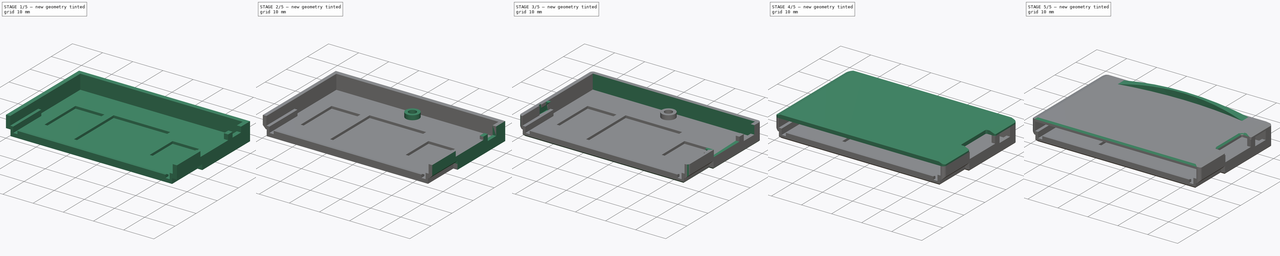
[diagram: build sequence overview — one tinted view per stage of 5, left to right]
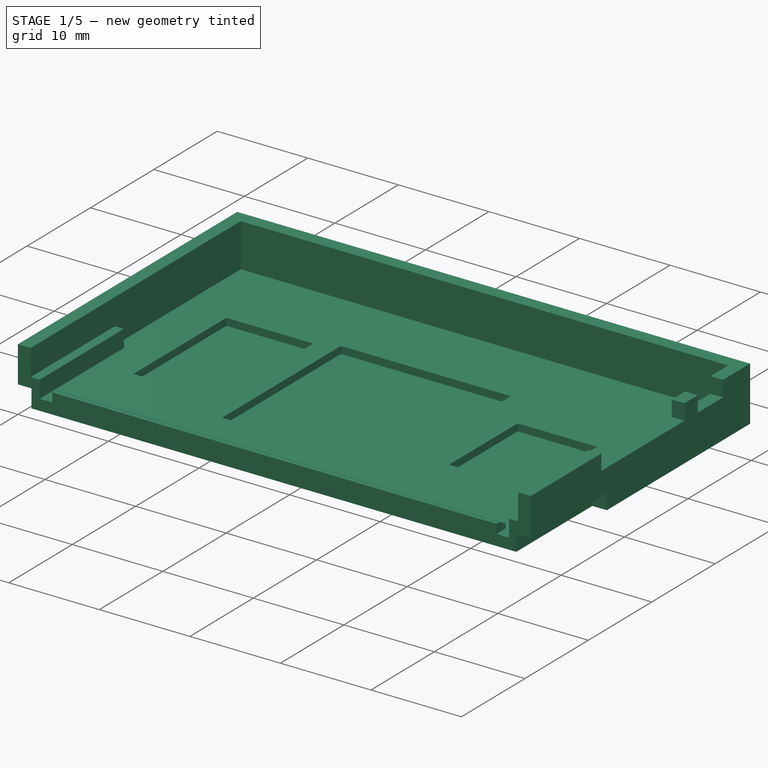
[diagram: stage 1 of 5 — iso view after this stage's code; geometry added in this stage tinted green]
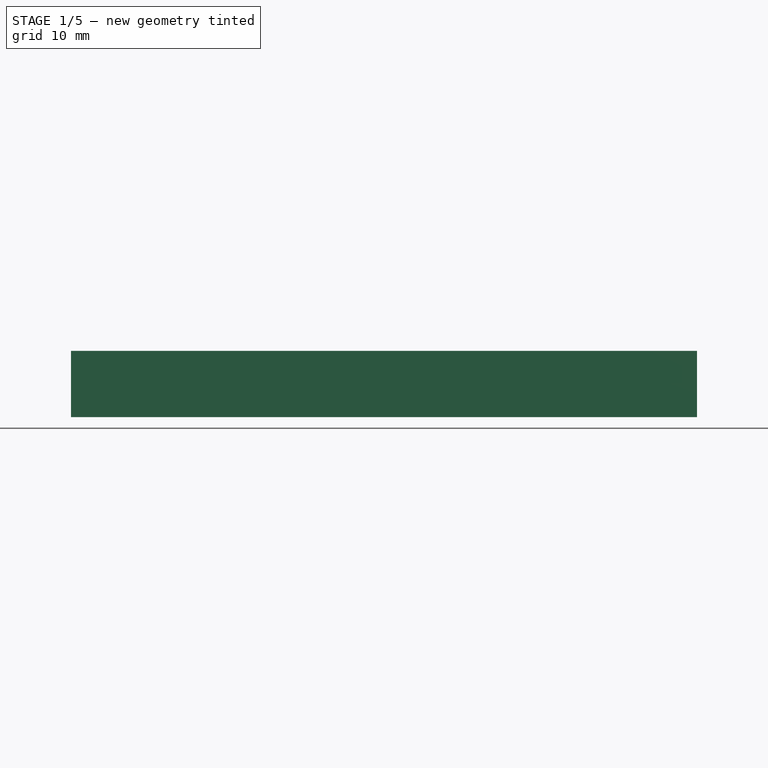
[diagram: stage 1 of 5 — front view after this stage's code; geometry added in this stage tinted green]
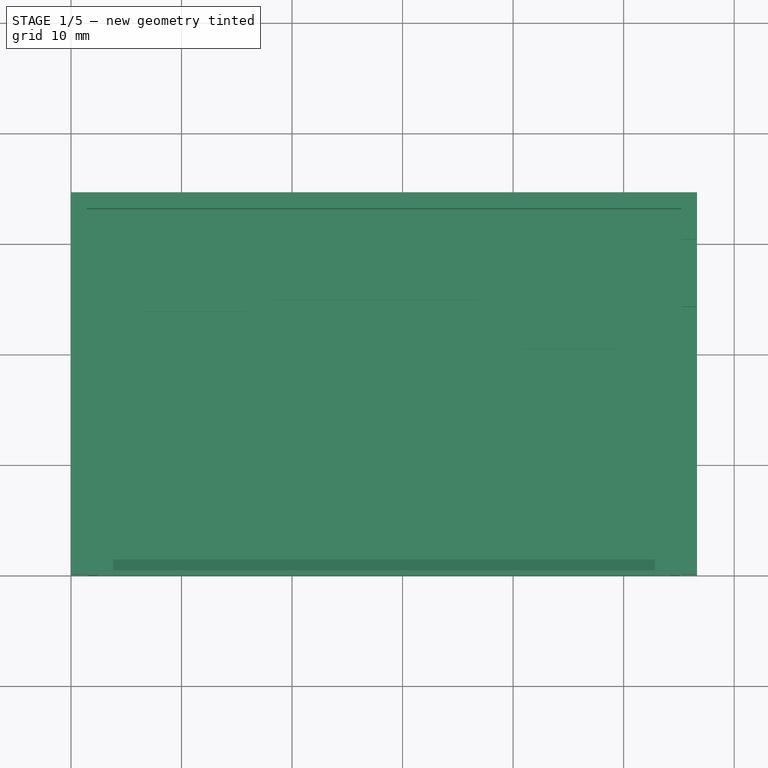
[diagram: stage 1 of 5 — top view after this stage's code; geometry added in this stage tinted green]
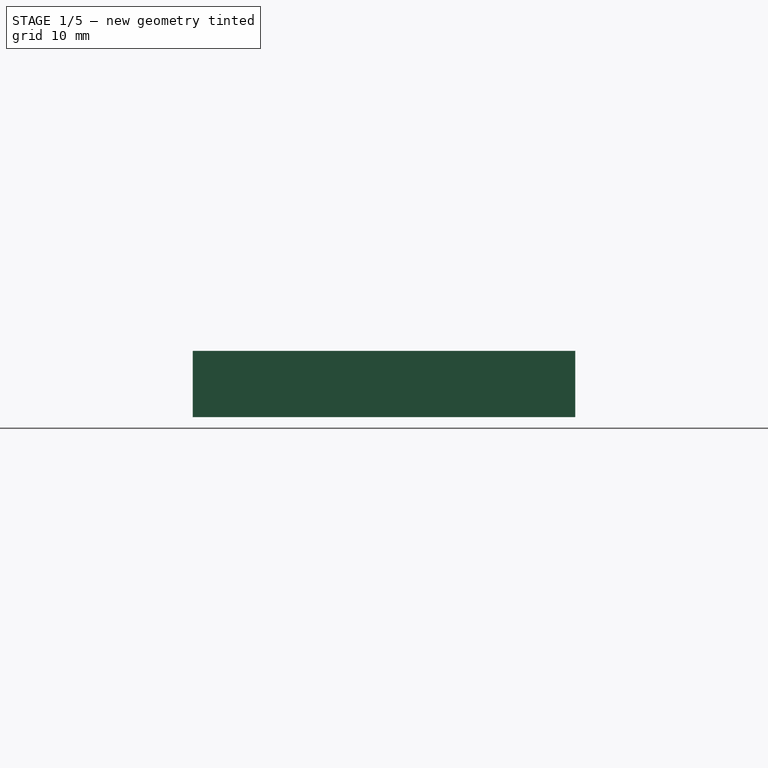
[diagram: stage 1 of 5 — right view after this stage's code; geometry added in this stage tinted green]
FCSTD DOCUMENT  (FreeCAD 0.20R29177 +426 (Git))
Label: EzFlash Omega DE
License: All rights reserved
LicenseURL: http://en.wikipedia.org/wiki/All_rights_reserved
objects: Sketcher::SketchObject×26, PartDesign::Pocket×25, PartDesign::Pad×11, PartDesign::Chamfer×8, PartDesign::ShapeBinder×4, PartDesign::Fillet×2, PartDesign::Body×2
note: 124 computed .brp shape members not serialized (recipe doc carries the construction recipe); baked Part::Feature solids carry a one-line shape summary decoded from their .brp

FEATURE [Sketcher::SketchObject] Sketch
  FullyConstrained = true
  MapMode = 5
  Support = -> [XY_Plane]
  sketch-geometry (4):
    g0: LineSegment StartX=0 StartY=0 StartZ=0 EndX=56.64 EndY=0 EndZ=0
    g1: LineSegment StartX=56.64 StartY=0 StartZ=0 EndX=56.64 EndY=34.6 EndZ=0
    g2: LineSegment StartX=56.64 StartY=34.6 StartZ=0 EndX=0 EndY=34.6 EndZ=0
    g3: LineSegment StartX=0 StartY=34.6 StartZ=0 EndX=0 EndY=0 EndZ=0
  constraints (11):
    c: Coincident(g0,g1)
    c: Coincident(g1,g2)
    c: Coincident(g2,g3)
    c: Coincident(g3,g0)
    c: Horizontal(g0)
    c: Horizontal(g2)
    c: Vertical(g1)
    c: Vertical(g3)
    c: Coincident(g0,g-1)
    c: Distance(g2) = 56.64
    c: Distance(g1) = 34.6
FEATURE [PartDesign::Pad] Pad
  Direction = (0,0,1)
  Length = 6
  Length2 = 10
  Profile = -> Sketch
  ReferenceAxis = -> Sketch [N_Axis]
  Type = 0
FEATURE [Sketcher::SketchObject] Sketch001
  ExternalGeometry = -> [Pad]
  FullyConstrained = true
  MapMode = 5
  Placement = pos=(0,0,6) rot=(0,0,1;0rad)
  Support = -> [Pad]
  sketch-geometry (19):
    g0: LineSegment StartX=56.64 StartY=0 StartZ=0 EndX=54.24 EndY=0 EndZ=0
    g1: LineSegment StartX=0 StartY=0 StartZ=0 EndX=2.4 EndY=0 EndZ=0
    g2: LineSegment StartX=2.4 StartY=0 StartZ=0 EndX=54.24 EndY=0 EndZ=0
    g3: LineSegment StartX=56.64 StartY=34.6 StartZ=0 EndX=55.24 EndY=34.6 EndZ=0
    g4: LineSegment StartX=55.24 StartY=34.6 StartZ=0 EndX=55.24 EndY=33.15 EndZ=0
    g5: LineSegment StartX=55.24 StartY=33.15 StartZ=0 EndX=56.64 EndY=33.15 EndZ=0
    g6: LineSegment StartX=56.64 StartY=33.15 StartZ=0 EndX=56.64 EndY=34.6 EndZ=0
    g7: LineSegment StartX=0 StartY=34.6 StartZ=0 EndX=1.4 EndY=34.6 EndZ=0
    g8: LineSegment StartX=1.4 StartY=34.6 StartZ=0 EndX=1.4 EndY=33.15 EndZ=0
    g9: LineSegment StartX=1.4 StartY=33.15 StartZ=0 EndX=0 EndY=33.15 EndZ=0
    g10: LineSegment StartX=0 StartY=33.15 StartZ=0 EndX=0 EndY=34.6 EndZ=0
    g11: LineSegment StartX=1.4 StartY=33.15 StartZ=0 EndX=55.24 EndY=33.15 EndZ=0
    g12: LineSegment StartX=55.24 StartY=33.15 StartZ=0 EndX=55.24 EndY=13.3 EndZ=0
    g13: LineSegment StartX=1.4 StartY=13.3 StartZ=0 EndX=1.4 EndY=33.15 EndZ=0
    g14: LineSegment StartX=2.4 StartY=0 StartZ=0 EndX=2.4 EndY=13.3 EndZ=0
    g15: LineSegment StartX=2.4 StartY=13.3 StartZ=0 EndX=1.4 EndY=13.3 EndZ=0
    g16: LineSegment StartX=54.24 StartY=0 StartZ=0 EndX=54.24 EndY=13.3 EndZ=0
    g17: LineSegment StartX=54.24 StartY=13.3 StartZ=0 EndX=55.24 EndY=13.3 EndZ=0
    g18: LineSegment StartX=2.4 StartY=13.3 StartZ=0 EndX=54.24 EndY=13.3 EndZ=0
  constraints (50):
    c: Coincident(g0,g-3)
    c: PointOnObject(g0,g-3)
    c: Coincident(g1,g-3)
    c: PointOnObject(g1,g-3)
    c: Equal(g1,g0)
    c: Distance(g0) = 2.4
    c: Coincident(g2,g1)
    c: Coincident(g2,g0)
    c: Coincident(g3,g4)
    c: Coincident(g4,g5)
    c: Coincident(g5,g6)
    c: Coincident(g6,g3)
    c: Horizontal(g3)
    c: Horizontal(g5)
    c: Vertical(g4)
    c: Vertical(g6)
    c: Coincident(g3,g-4)
    c: Distance(g5) = 1.4
    c: Coincident(g7,g8)
    c: Coincident(g8,g9)
    c: Coincident(g9,g10)
    c: Coincident(g10,g7)
    c: Horizontal(g7)
    c: Horizontal(g9)
    c: Vertical(g8)
    c: Vertical(g10)
    c: Coincident(g7,g-4)
    c: Equal(g9,g5)
    c: Equal(g4,g8)
    c: Distance(g4) = 1.45
    c: Coincident(g11,g12)
    c: Coincident(g13,g11)
    c: Vertical(g12)
    c: Vertical(g13)
    c: Coincident(g11,g8)
    c: Coincident(g11,g4)
    c: Coincident(g14,g2)
    c: Vertical(g14)
    c: Coincident(g15,g14)
    c: Coincident(g16,g2)
    c: Vertical(g16)
    c: Coincident(g17,g16)
    c: Coincident(g17,g12)
    c: Coincident(g18,g14)
    c: Coincident(g18,g16)
    c: Horizontal(g18)
    c: Horizontal(g15)
    c: Horizontal(g17)
    c: Coincident(g13,g15)
    c: Distance(g14) = 13.3
FEATURE [PartDesign::Pocket] Pocket
  BaseFeature = -> Pad
  Direction = (0,0,-1)
  Length = 4.4
  Length2 = 5
  Profile = -> Sketch001
  ReferenceAxis = -> Sketch001 [N_Axis]
  Type = 0
FEATURE [Sketcher::SketchObject] Sketch002
  ExternalGeometry = -> [Pocket]
  FullyConstrained = true
  MapMode = 5
  Placement = pos=(0,0,1.6) rot=(0,0,1;0rad)
  Support = -> [Pocket]
  sketch-geometry (6):
    g0: LineSegment StartX=3.8 StartY=0 StartZ=0 EndX=52.84 EndY=0 EndZ=0
    g1: LineSegment StartX=52.84 StartY=0 StartZ=0 EndX=52.84 EndY=1.45 EndZ=0
    g2: LineSegment StartX=52.84 StartY=1.45 StartZ=0 EndX=3.8 EndY=1.45 EndZ=0
    g3: LineSegment StartX=3.8 StartY=1.45 StartZ=0 EndX=3.8 EndY=0 EndZ=0
    g4: LineSegment StartX=52.84 StartY=0 StartZ=0 EndX=54.24 EndY=0 EndZ=0
    g5: LineSegment StartX=2.4 StartY=0 StartZ=0 EndX=3.8 EndY=0 EndZ=0
  constraints (16):
    c: Coincident(g0,g1)
    c: Coincident(g1,g2)
    c: Coincident(g2,g3)
    c: Coincident(g3,g0)
    c: Horizontal(g0)
    c: Horizontal(g2)
    c: Vertical(g1)
    c: Vertical(g3)
    c: PointOnObject(g0,g-3)
    c: Distance(g1) = 1.45
    c: Coincident(g4,g0)
    c: Coincident(g4,g-3)
    c: Coincident(g5,g-3)
    c: Coincident(g5,g0)
    c: Equal(g5,g4)
    c: Distance(g4) = 1.4
FEATURE [PartDesign::Pad] Pad001
  BaseFeature = -> Pocket
  Direction = (0,0,1)
  Length = 10
  Length2 = 10
  Offset = 2.2
  Profile = -> Sketch002
  ReferenceAxis = -> Sketch002 [N_Axis]
  Type = 3
  UpToFace = -> Pocket [Face2]
FEATURE [PartDesign::Chamfer] Chamfer
  Angle = 45
  Base = -> Pad001 [Edge48]
  BaseFeature = -> Pad001
  ChamferType = 1
  FlipDirection = false
  Refine = true
  Size = 0.5
  Size2 = 1
  SupportTransform = false
  UseAllEdges = false
FEATURE [Sketcher::SketchObject] Sketch003
  ExternalGeometry = -> [Chamfer]
  FullyConstrained = true
  MapMode = 5
  Placement = pos=(0,0,0) rot=(1,0,0;1.5708rad)
  Support = -> [Chamfer]
  sketch-geometry (8):
    g0: LineSegment StartX=0 StartY=0 StartZ=0 EndX=1.5 EndY=0 EndZ=0
    g1: LineSegment StartX=1.5 StartY=0 StartZ=0 EndX=1.5 EndY=2 EndZ=0
    g2: LineSegment StartX=1.5 StartY=2 StartZ=0 EndX=0 EndY=2 EndZ=0
    g3: LineSegment StartX=0 StartY=2 StartZ=0 EndX=0 EndY=0 EndZ=0
    g4: LineSegment StartX=56.64 StartY=0 StartZ=0 EndX=55.04 EndY=0 EndZ=0
    g5: LineSegment StartX=55.04 StartY=0 StartZ=0 EndX=55.04 EndY=1.75 EndZ=0
    g6: LineSegment StartX=55.04 StartY=1.75 StartZ=0 EndX=56.64 EndY=1.75 EndZ=0
    g7: LineSegment StartX=56.64 StartY=1.75 StartZ=0 EndX=56.64 EndY=0 EndZ=0
  constraints (22):
    c: Coincident(g0,g1)
    c: Coincident(g1,g2)
    c: Coincident(g2,g3)
    c: Coincident(g3,g0)
    c: Horizontal(g0)
    c: Horizontal(g2)
    c: Vertical(g1)
    c: Vertical(g3)
    c: Coincident(g0,g-3)
    c: Coincident(g4,g5)
    c: Coincident(g5,g6)
    c: Coincident(g6,g7)
    c: Coincident(g7,g4)
    c: Horizontal(g4)
    c: Horizontal(g6)
    c: Vertical(g5)
    c: Vertical(g7)
    c: Coincident(g4,g-4)
    c: Distance(g0) = 1.5
    c: Distance(g3) = 2
    c: Distance(g7) = 1.75
    c: Distance(g4) = 1.6
FEATURE [PartDesign::Pocket] Pocket001
  BaseFeature = -> Chamfer
  Direction = (0,1,-2e-16)
  Length = 12
  Length2 = 5
  Profile = -> Sketch003
  ReferenceAxis = -> Sketch003 [N_Axis]
  Type = 0
FEATURE [Sketcher::SketchObject] Sketch004
  ExternalGeometry = -> [Pocket001]
  FullyConstrained = true
  MapMode = 5
  Placement = pos=(0,0,6) rot=(0,0,1;0rad)
  Support = -> [Pocket001]
  sketch-geometry (4):
    g0: LineSegment StartX=1.4 StartY=13.3 StartZ=0 EndX=55.24 EndY=13.3 EndZ=0
    g1: LineSegment StartX=55.24 StartY=13.3 StartZ=0 EndX=55.24 EndY=0 EndZ=0
    g2: LineSegment StartX=55.24 StartY=0 StartZ=0 EndX=1.4 EndY=0 EndZ=0
    g3: LineSegment StartX=1.4 StartY=0 StartZ=0 EndX=1.4 EndY=13.3 EndZ=0
  constraints (10):
    c: Coincident(g0,g1)
    c: Coincident(g1,g2)
    c: Coincident(g2,g3)
    c: Coincident(g3,g0)
    c: Horizontal(g2)
    c: Vertical(g1)
    c: Vertical(g3)
    c: Coincident(g0,g-3)
    c: PointOnObject(g1,g-5)
    c: Coincident(g0,g-4)
FEATURE [PartDesign::Pocket] Pocket002
  BaseFeature = -> Pocket001
  Direction = (0,0,-1)
  Length = 2.9
  Length2 = 5
  Profile = -> Sketch004
  ReferenceAxis = -> Sketch004 [N_Axis]
  Type = 0
FEATURE [Sketcher::SketchObject] Sketch005
  ExternalGeometry = -> [Pocket002]
  FullyConstrained = true
  MapMode = 5
  Placement = pos=(0,0,1.6) rot=(0,0,1;0rad)
  Support = -> [Pocket002]
  sketch-geometry (18):
    g0: LineSegment StartX=18.24 StartY=24.9 StartZ=0 EndX=36.99 EndY=24.9 EndZ=0
    g1: LineSegment StartX=36.99 StartY=24.9 StartZ=0 EndX=36.99 EndY=6.15 EndZ=0
    g2: LineSegment StartX=36.99 StartY=6.15 StartZ=0 EndX=18.24 EndY=6.15 EndZ=0
    g3: LineSegment StartX=18.24 StartY=6.15 StartZ=0 EndX=18.24 EndY=24.9 EndZ=0
    g4: LineSegment StartX=40.84 StartY=9.7 StartZ=0 EndX=49.64 EndY=9.7 EndZ=0
    g5: LineSegment StartX=49.64 StartY=9.7 StartZ=0 EndX=49.64 EndY=20.5 EndZ=0
    g6: LineSegment StartX=49.64 StartY=20.5 StartZ=0 EndX=40.84 EndY=20.5 EndZ=0
    g7: LineSegment StartX=40.84 StartY=20.5 StartZ=0 EndX=40.84 EndY=9.7 EndZ=0
    g8: LineSegment StartX=6.3 StartY=23.89 StartZ=0 EndX=15.9 EndY=23.89 EndZ=0
    g9: LineSegment StartX=15.9 StartY=23.89 StartZ=0 EndX=15.9 EndY=9.24 EndZ=0
    g10: LineSegment StartX=15.9 StartY=9.24 StartZ=0 EndX=6.3 EndY=9.24 EndZ=0
    g11: LineSegment StartX=6.3 StartY=9.24 StartZ=0 EndX=6.3 EndY=23.89 EndZ=0
    g12: LineSegment StartX=49.64 StartY=9.7 StartZ=0 EndX=49.64 EndY=33.15 EndZ=0
    g13: LineSegment StartX=40.84 StartY=20.5 StartZ=0 EndX=55.24 EndY=20.5 EndZ=0
    g14: LineSegment StartX=18.24 StartY=24.9 StartZ=0 EndX=55.24 EndY=24.9 EndZ=0
    g15: LineSegment StartX=36.99 StartY=6.15 StartZ=0 EndX=36.99 EndY=33.15 EndZ=0
    g16: LineSegment StartX=15.9 StartY=9.24 StartZ=0 EndX=15.9 EndY=33.15 EndZ=0
    g17: LineSegment StartX=15.9 StartY=23.89 StartZ=0 EndX=1.4 EndY=23.89 EndZ=0
  constraints (54):
    c: Coincident(g0,g1)
    c: Coincident(g1,g2)
    c: Coincident(g2,g3)
    c: Coincident(g3,g0)
    c: Horizontal(g0)
    c: Horizontal(g2)
    c: Vertical(g1)
    c: Vertical(g3)
    c: Coincident(g4,g5)
    c: Coincident(g5,g6)
    c: Coincident(g6,g7)
    c: Coincident(g7,g4)
    c: Horizontal(g4)
    c: Horizontal(g6)
    c: Vertical(g5)
    c: Vertical(g7)
    c: Coincident(g8,g9)
    c: Coincident(g9,g10)
    c: Coincident(g10,g11)
    c: Coincident(g11,g8)
    c: Horizontal(g8)
    c: Horizontal(g10)
    c: Vertical(g9)
    c: Vertical(g11)
    c: Distance(g0) = 18.75
    c: Equal(g0,g1)
    c: Distance(g6) = 8.8
    c: Distance(g8) = 9.6
    c: Distance(g11) = 14.65
    c: Distance(g5) = 10.8
    c: Coincident(g12,g4)
    c: PointOnObject(g12,g-3)
    c: Vertical(g12)
    c: Distance(g12) = 23.45
    c: Coincident(g13,g6)
    c: PointOnObject(g13,g-4)
    c: Horizontal(g13)
    c: Distance(g13) = 14.4
    c: Coincident(g14,g0)
    c: PointOnObject(g14,g-4)
    c: Horizontal(g14)
    c: Distance(g14) = 37
    c: Coincident(g15,g1)
    c: PointOnObject(g15,g-3)
    c: Vertical(g15)
    c: Distance(g15) = 27
    c: Coincident(g16,g9)
    c: PointOnObject(g16,g-3)
    c: Vertical(g16)
    c: Distance(g16) = 23.91
    c: Coincident(g17,g8)
    c: PointOnObject(g17,g-5)
    c: Horizontal(g17)
    c: Distance(g17) = 14.5
FEATURE [PartDesign::Pocket] Pocket003
  BaseFeature = -> Pocket002
  Direction = (0,0,-1)
  Length = 0
  Length2 = 5
  Offset = 0.4
  Profile = -> Sketch005
  ReferenceAxis = -> Sketch005 [N_Axis]
  Reversed = true
  Type = 3
  UpToFace = -> Pocket002 [Face1]
FEATURE [PartDesign::Pocket] Pocket004
  BaseFeature = -> Pocket003
  Direction = (0,0,-1)
  Length = 0.4
  Length2 = 5
  Profile = -> Pocket003 [Face13]
  Refine = true
  Type = 0
FEATURE [Sketcher::SketchObject] Sketch006
  ExternalGeometry = -> [Pocket004]
  FullyConstrained = true
  MapMode = 5
  Placement = pos=(0,0,6) rot=(0,0,1;0rad)
  Support = -> [Pocket004]
  sketch-geometry (10):
    g0: LineSegment StartX=56.64 StartY=0 StartZ=0 EndX=56.64 EndY=11.15 EndZ=0
    g1: LineSegment StartX=56.64 StartY=11.15 StartZ=0 EndX=55.24 EndY=11.15 EndZ=0
    g2: LineSegment StartX=55.24 StartY=11.15 StartZ=0 EndX=55.24 EndY=24.25 EndZ=0
    g3: LineSegment StartX=55.24 StartY=24.25 StartZ=0 EndX=56.64 EndY=24.25 EndZ=0
    g4: LineSegment StartX=56.64 StartY=24.25 StartZ=0 EndX=56.64 EndY=11.15 EndZ=0
    g5: LineSegment StartX=56.64 StartY=24.25 StartZ=0 EndX=56.64 EndY=26.35 EndZ=0
    g6: LineSegment StartX=55.24 StartY=30.35 StartZ=0 EndX=56.64 EndY=30.35 EndZ=0
    g7: LineSegment StartX=56.64 StartY=30.35 StartZ=0 EndX=56.64 EndY=26.35 EndZ=0
    g8: LineSegment StartX=56.64 StartY=26.35 StartZ=0 EndX=55.24 EndY=26.35 EndZ=0
    g9: LineSegment StartX=55.24 StartY=26.35 StartZ=0 EndX=55.24 EndY=30.35 EndZ=0
  constraints (28):
    c: Coincident(g0,g-3)
    c: Vertical(g0)
    c: Coincident(g1,g2)
    c: Coincident(g2,g3)
    c: Coincident(g3,g4)
    c: Coincident(g4,g1)
    c: Horizontal(g1)
    c: Horizontal(g3)
    c: Vertical(g2)
    c: Vertical(g4)
    c: Coincident(g1,g0)
    c: Equal(g1,g-3)
    c: Distance(g0) = 11.15
    c: Distance(g4) = 13.1
    c: Coincident(g5,g3)
    c: Vertical(g5)
    c: Coincident(g6,g7)
    c: Coincident(g7,g8)
    c: Coincident(g8,g9)
    c: Coincident(g9,g6)
    c: Horizontal(g6)
    c: Horizontal(g8)
    c: Vertical(g7)
    c: Vertical(g9)
    c: Coincident(g7,g5)
    c: Distance(g7) = 4
    c: Equal(g8,g3)
    c: Distance(g5) = 2.1
FEATURE [PartDesign::Pocket] Pocket005
  BaseFeature = -> Pocket004
  Direction = (0,0,-1)
  Length = 1.75
  Length2 = 5
  Profile = -> Sketch006
  ReferenceAxis = -> Sketch006 [N_Axis]
  Type = 0
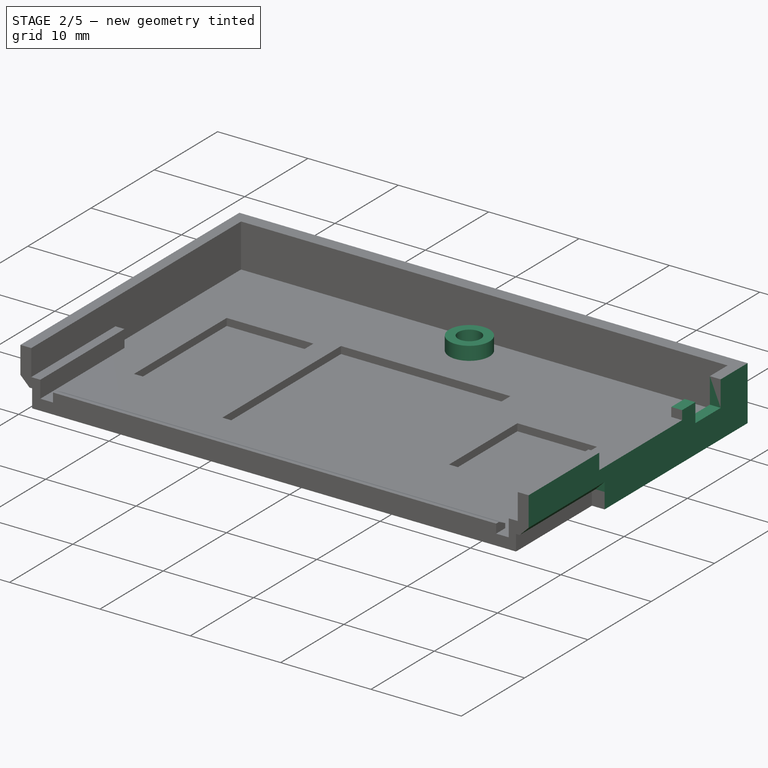
[diagram: stage 2 of 5 — iso view after this stage's code; geometry added in this stage tinted green]
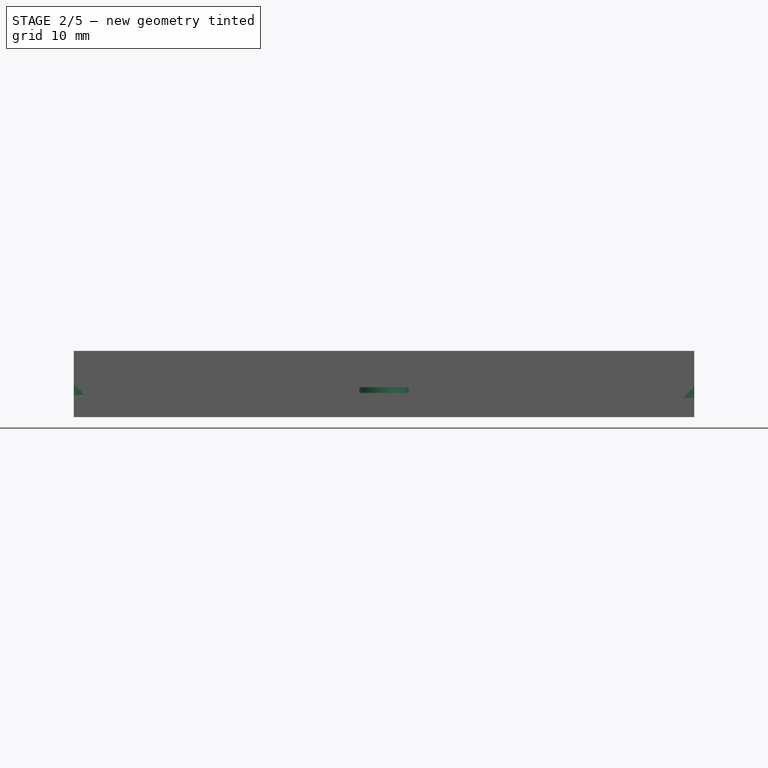
[diagram: stage 2 of 5 — front view after this stage's code; geometry added in this stage tinted green]
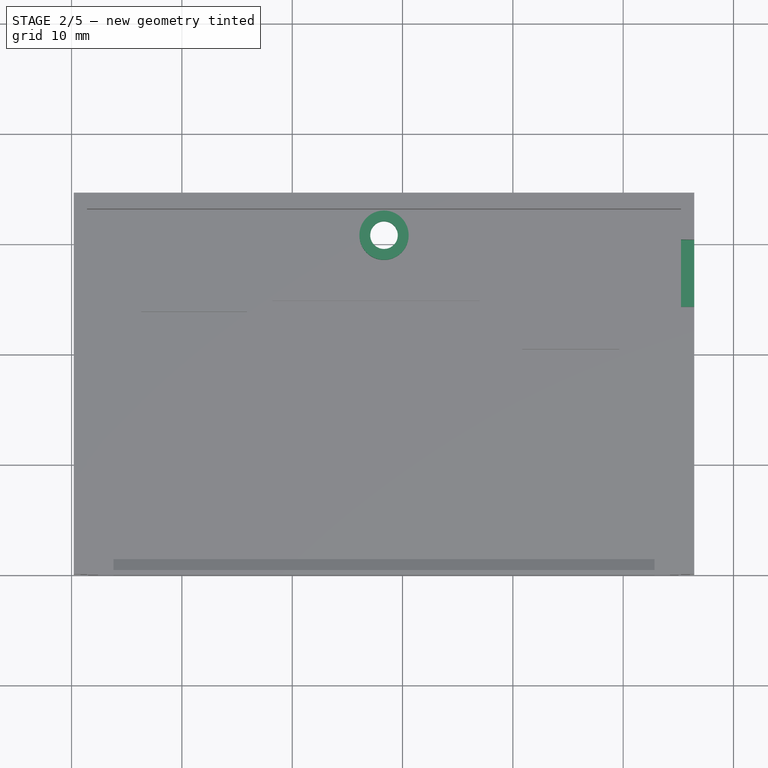
[diagram: stage 2 of 5 — top view after this stage's code; geometry added in this stage tinted green]
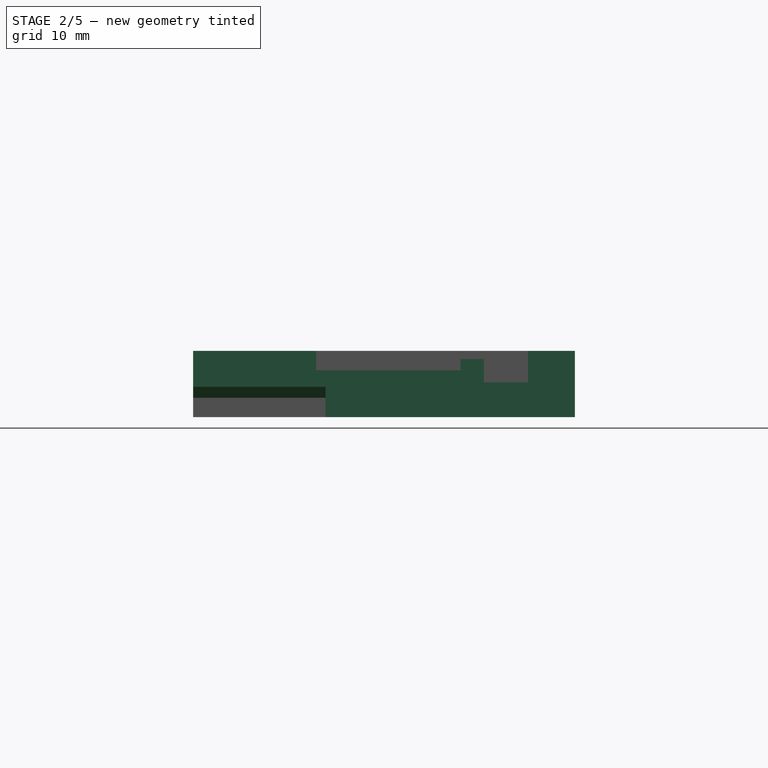
[diagram: stage 2 of 5 — right view after this stage's code; geometry added in this stage tinted green]
FEATURE [PartDesign::Pocket] Pocket006
  BaseFeature = -> Pocket005
  Direction = (0,0,-1)
  Length = 1.1
  Length2 = 5
  Profile = -> Pocket005 [Face14]
  Refine = true
  Type = 0
FEATURE [PartDesign::Pocket] Pocket007
  BaseFeature = -> Pocket006
  Direction = (0,0,-1)
  Length = 0
  Length2 = 5
  Offset = 1
  Profile = -> Pocket006 [Face14]
  Reversed = true
  Type = 3
  UpToFace = -> Pocket006 [Face16]
FEATURE [PartDesign::Pocket] Pocket008
  BaseFeature = -> Pocket007
  Direction = (-1,0,0)
  Length = 0.2
  Length2 = 5
  Profile = -> Pocket007 [Face6]
  Type = 0
FEATURE [PartDesign::Pocket] Pocket009
  BaseFeature = -> Pocket008
  Direction = (1,0,0)
  Length = 0.2
  Length2 = 5
  Profile = -> Pocket008 [Face4]
  Type = 0
FEATURE [PartDesign::Chamfer] Chamfer001
  Angle = 45
  Base = -> Pocket009 [Edge14,Edge20]
  BaseFeature = -> Pocket009
  ChamferType = 0
  FlipDirection = false
  Size = 1
  Size2 = 1
  SupportTransform = false
  UseAllEdges = false
FEATURE [Sketcher::SketchObject] Sketch007
  ExternalGeometry = -> [Chamfer001]
  FullyConstrained = false
  MapMode = 5
  Placement = pos=(0,0,1.2) rot=(0,0,1;0rad)
  Support = -> [Chamfer001]
  sketch-geometry (4):
    g0: LineSegment StartX=28.32 StartY=34.6 StartZ=0 EndX=28.32 EndY=32.2 EndZ=0
    g1: Circle CenterX=28.32 CenterY=30.8 CenterZ=0 NormalX=0 NormalY=0 NormalZ=1 AngleXU=0 Radius=1.4
    g2: LineSegment StartX=28.32 StartY=32.2 StartZ=0 EndX=28.32 EndY=30.8 EndZ=0
    g3: Circle CenterX=28.32 CenterY=30.8 CenterZ=0 NormalX=0 NormalY=0 NormalZ=1 AngleXU=0 Radius=2.23266
  constraints (9):
    c: Vertical(g0)
    c: Symmetric(g-3,g-3,g0)
    c: Distance(g0) = 2.4
    c: PointOnObject(g0,g1)
    c: Coincident(g2,g0)
    c: Coincident(g2,g1)
    c: Vertical(g2)
    c: Diameter(g1) = 2.8
    c: Coincident(g3,g1)
FEATURE [PartDesign::Pad] Pad002
  BaseFeature = -> Chamfer001
  Direction = (0,0,1)
  Length = 1.5
  Length2 = 10
  Profile = -> Sketch007
  ReferenceAxis = -> Sketch007 [N_Axis]
  Refine = true
  Type = 0
FEATURE [Sketcher::SketchObject] Sketch008
  ExternalGeometry = -> [Pad002]
  FullyConstrained = true
  MapMode = 5
  Placement = pos=(0,0,2.7) rot=(0,0,1;0rad)
  Support = -> [Pad002]
  sketch-geometry (1):
    g0: Circle CenterX=28.32 CenterY=30.8 CenterZ=0 NormalX=0 NormalY=0 NormalZ=1 AngleXU=0 Radius=1.25
  constraints (2):
    c: Coincident(g0,g-3)
    c: Diameter(g0) = 2.5
FEATURE [PartDesign::Pocket] Pocket010
  BaseFeature = -> Pad002
  Direction = (0,0,-1)
  Length = 10
  Length2 = 5
  Profile = -> Sketch008
  ReferenceAxis = -> Sketch008 [N_Axis]
  Type = 0
FEATURE [Sketcher::SketchObject] Sketch009
  ExternalGeometry = -> [Pocket010]
  FullyConstrained = true
  MapMode = 5
  Placement = pos=(0,0,0) rot=(1,0,0;3.14159rad)
  Support = -> [Pocket010]
  sketch-geometry (1):
    g0: Circle CenterX=28.32 CenterY=-30.8 CenterZ=0 NormalX=0 NormalY=0 NormalZ=1 AngleXU=0 Radius=2
  constraints (2):
    c: Coincident(g0,g-3)
    c: Diameter(g0) = 4
FEATURE [PartDesign::Pocket] Pocket011
  BaseFeature = -> Pocket010
  Direction = (0,0,1)
  Length = 1.5
  Length2 = 5
  Profile = -> Sketch009
  ReferenceAxis = -> Sketch009 [N_Axis]
  Type = 0
FEATURE [PartDesign::Chamfer] Chamfer002
  Angle = 45
  Base = -> Pocket011 [Edge64]
  BaseFeature = -> Pocket011
  ChamferType = 0
  FlipDirection = false
  Size = 0.7
  Size2 = 1
  SupportTransform = false
  UseAllEdges = false
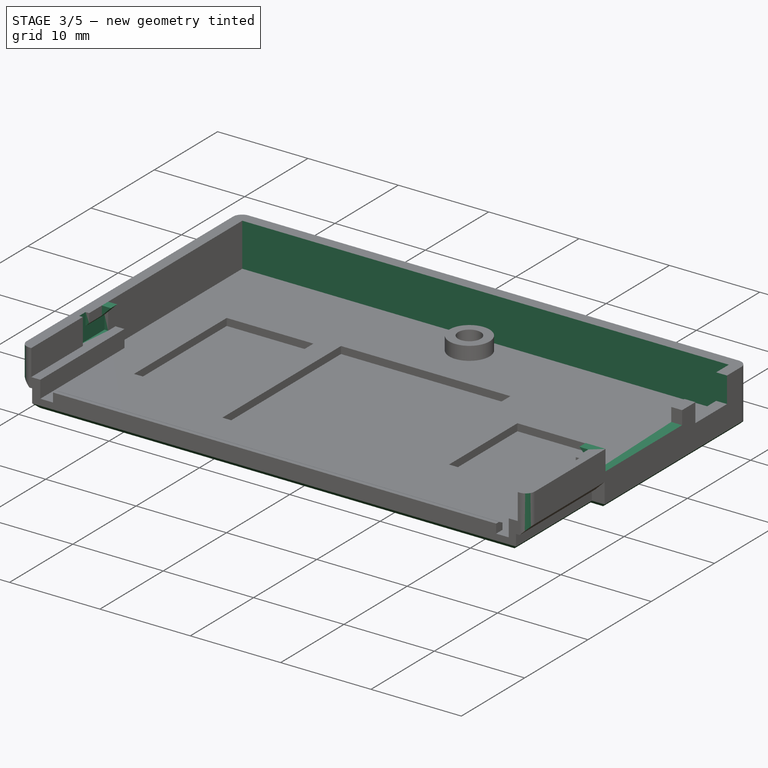
[diagram: stage 3 of 5 — iso view after this stage's code; geometry added in this stage tinted green]
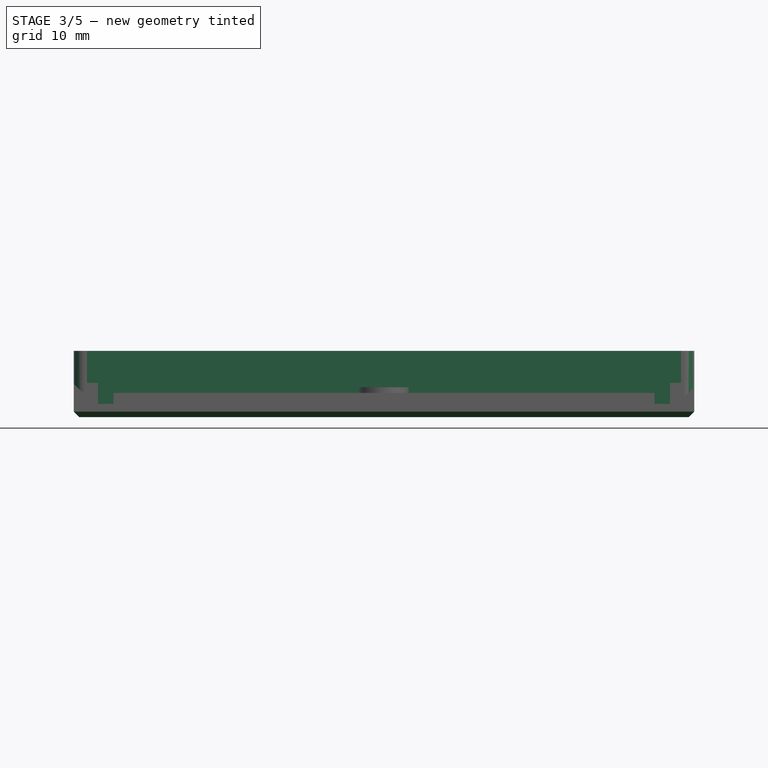
[diagram: stage 3 of 5 — front view after this stage's code; geometry added in this stage tinted green]
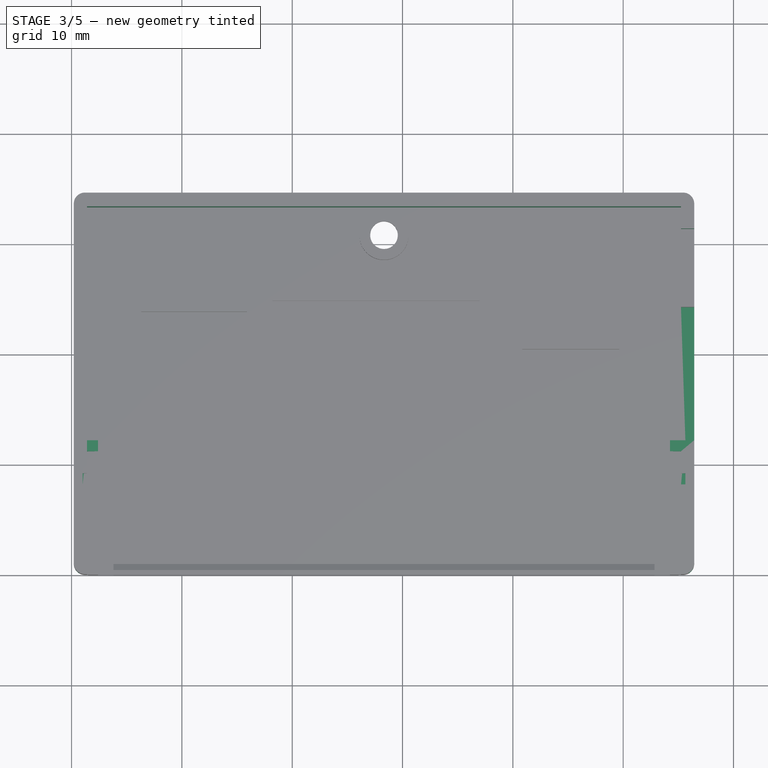
[diagram: stage 3 of 5 — top view after this stage's code; geometry added in this stage tinted green]
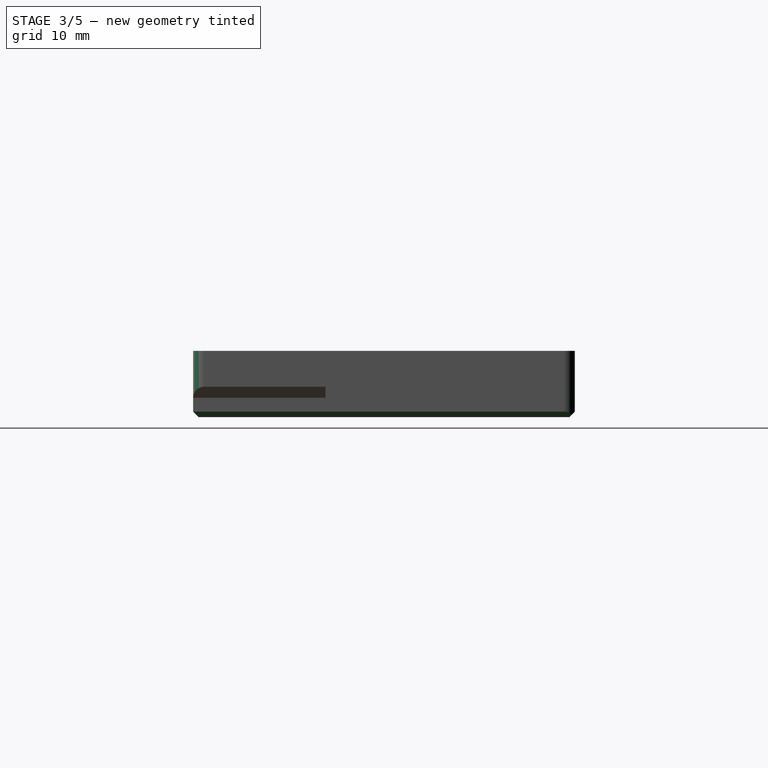
[diagram: stage 3 of 5 — right view after this stage's code; geometry added in this stage tinted green]
FEATURE [PartDesign::Pocket] Pocket012
  BaseFeature = -> Chamfer002
  Direction = (0,0,-1)
  Length = 0.5
  Length2 = 5
  Profile = -> Chamfer002 [Face31]
  Type = 0
FEATURE [PartDesign::Pocket] Pocket013
  BaseFeature = -> Pocket012
  Direction = (0,1,0)
  Length = 0.2
  Length2 = 5
  Profile = -> Pocket012 [Face41]
  Refine = true
  Type = 0
FEATURE [Sketcher::SketchObject] Sketch010
  ExternalGeometry = -> [Pocket013]
  FullyConstrained = true
  MapMode = 5
  Placement = pos=(0,0,1.2) rot=(0,0,1;0rad)
  Support = -> [Pocket013]
  sketch-geometry (8):
    g0: LineSegment StartX=3.8 StartY=0 StartZ=0 EndX=52.84 EndY=0 EndZ=0
    g1: LineSegment StartX=52.84 StartY=0 StartZ=0 EndX=52.84 EndY=1 EndZ=0
    g2: LineSegment StartX=52.84 StartY=1 StartZ=0 EndX=3.8 EndY=1 EndZ=0
    g3: LineSegment StartX=3.8 StartY=1 StartZ=0 EndX=3.8 EndY=0 EndZ=0
    g4: LineSegment StartX=3.8 StartY=6 StartZ=0 EndX=52.84 EndY=6 EndZ=0
    g5: LineSegment StartX=52.84 StartY=6 StartZ=0 EndX=52.84 EndY=1 EndZ=0
    g6: LineSegment StartX=52.84 StartY=1 StartZ=0 EndX=3.8 EndY=1 EndZ=0
    g7: LineSegment StartX=3.8 StartY=1 StartZ=0 EndX=3.8 EndY=6 EndZ=0
  constraints (20):
    c: Coincident(g0,g1)
    c: Coincident(g1,g2)
    c: Coincident(g2,g3)
    c: Coincident(g3,g0)
    c: Horizontal(g2)
    c: Vertical(g1)
    c: Vertical(g3)
    c: Coincident(g0,g-3)
    c: Coincident(g-3,g0)
    c: Coincident(g4,g5)
    c: Coincident(g5,g6)
    c: Coincident(g6,g7)
    c: Coincident(g7,g4)
    c: Horizontal(g4)
    c: Vertical(g5)
    c: Vertical(g7)
    c: Coincident(g6,g2)
    c: Coincident(g1,g5)
    c: Distance(g1) = 1
    c: Distance(g5) = 5
FEATURE [PartDesign::Pocket] Pocket014
  BaseFeature = -> Pocket013
  Direction = (0,0,-1)
  Length = 5
  Length2 = 5
  Profile = -> Sketch010
  ReferenceAxis = -> Sketch010 [N_Axis]
  Refine = true
  Reversed = true
  Type = 0
FEATURE [PartDesign::Chamfer] Chamfer003
  Angle = 45
  Base = -> Pocket014 [Face3]
  BaseFeature = -> Pocket014
  ChamferType = 0
  FlipDirection = false
  Refine = true
  Size = 0.5
  Size2 = 1
  SupportTransform = false
  UseAllEdges = false
FEATURE [PartDesign::Pocket] Pocket015
  BaseFeature = -> Chamfer003
  Direction = (0,1,0)
  Length = 1
  Length2 = 5
  Profile = -> Chamfer003 [Face40]
  Refine = true
  Type = 0
FEATURE [PartDesign::Fillet] Fillet
  Base = -> Pocket015 [Edge70,Edge64,Edge45,Edge42]
  BaseFeature = -> Pocket015
  Radius = 1
  SupportTransform = false
  UseAllEdges = false
FEATURE [PartDesign::Pad] Pad004
  BaseFeature = -> Fillet
  Direction = (0,1,0)
  Length = 1
  Length2 = 10
  Profile = -> Fillet [Face35]
  Refine = true
  Type = 0
FEATURE [Sketcher::SketchObject] Sketch012
  ExternalGeometry = -> [Pad004]
  FullyConstrained = true
  MapMode = 5
  Placement = pos=(0,12.15,0) rot=(0,0.707107,0.707107;3.14159rad)
  Support = -> [Pad004]
  sketch-geometry (8):
    g0: LineSegment StartX=-1.4 StartY=6 StartZ=0 EndX=-2.4 EndY=6 EndZ=0
    g1: LineSegment StartX=-2.4 StartY=6 StartZ=0 EndX=-1.4 EndY=5 EndZ=0
    g2: LineSegment StartX=-55.24 StartY=6 StartZ=0 EndX=-54.24 EndY=6 EndZ=0
    g3: LineSegment StartX=-54.24 StartY=6 StartZ=0 EndX=-55.24 EndY=5 EndZ=0
    g4: LineSegment StartX=-54.24 StartY=6 StartZ=0 EndX=-54.24 EndY=3.1 EndZ=0
    g5: LineSegment StartX=-2.4 StartY=3.1 StartZ=0 EndX=-2.4 EndY=6 EndZ=0
    g6: LineSegment StartX=-55.24 StartY=6 StartZ=0 EndX=-55.24 EndY=5 EndZ=0
    g7: LineSegment StartX=-1.4 StartY=6 StartZ=0 EndX=-1.4 EndY=5 EndZ=0
  constraints (20):
    c: Horizontal(g0)
    c: Coincident(g1,g0)
    c: Horizontal(g2)
    c: Coincident(g3,g2)
    c: Coincident(g4,g2)
    c: Coincident(g4,g-5)
    c: Vertical(g4)
    c: Coincident(g5,g-6)
    c: Coincident(g5,g0)
    c: Vertical(g5)
    c: Angle(g1,g0) = 0.785398
    c: Angle(g2,g3) = 0.785398
    c: PointOnObject(g3,g-3)
    c: Coincident(g2,g-3)
    c: Coincident(g6,g2)
    c: Coincident(g6,g3)
    c: Coincident(g-4,g0)
    c: PointOnObject(g1,g-4)
    c: Coincident(g7,g0)
    c: Coincident(g7,g1)
FEATURE [PartDesign::Pad] Pad005
  BaseFeature = -> Pad004
  Direction = (0,1,-2e-16)
  Length = 1
  Length2 = 10
  Profile = -> Sketch012
  ReferenceAxis = -> Sketch012 [N_Axis]
  Refine = true
  Reversed = true
  Type = 0
FEATURE [Sketcher::SketchObject] Sketch013
  ExternalGeometry = -> [Pad005]
  FullyConstrained = true
  MapMode = 5
  Placement = pos=(0,11.15,0) rot=(1,0,0;1.5708rad)
  Support = -> [Pad005]
  sketch-geometry (18):
    g0: LineSegment StartX=54.24 StartY=6 StartZ=0 EndX=55.24 EndY=6 EndZ=0
    g1: LineSegment StartX=55.24 StartY=5 StartZ=0 EndX=55.24 EndY=6 EndZ=0
    g2: LineSegment StartX=1.4 StartY=5 StartZ=0 EndX=1.4 EndY=6 EndZ=0
    g3: LineSegment StartX=1.4 StartY=6 StartZ=0 EndX=2.4 EndY=6 EndZ=0
    g4: LineSegment StartX=1.4 StartY=6 StartZ=0 EndX=1 EndY=6 EndZ=0
    g5: LineSegment StartX=1 StartY=6 StartZ=0 EndX=1 EndY=4.6 EndZ=0
    g6: LineSegment StartX=1 StartY=4.6 StartZ=0 EndX=1.4 EndY=5 EndZ=0
    g7: LineSegment StartX=1.4 StartY=5 StartZ=0 EndX=2.4 EndY=6 EndZ=0
    g8: LineSegment StartX=55.24 StartY=6 StartZ=0 EndX=55.64 EndY=6 EndZ=0
    g9: LineSegment StartX=55.64 StartY=6 StartZ=0 EndX=55.64 EndY=4.6 EndZ=0
    g10: LineSegment StartX=55.64 StartY=4.6 StartZ=0 EndX=55.24 EndY=5 EndZ=0
    g11: LineSegment StartX=54.24 StartY=6 StartZ=0 EndX=55.24 EndY=5 EndZ=0
    g12: LineSegment StartX=2.4 StartY=6 StartZ=0 EndX=2.4 EndY=3.1 EndZ=0
    g13: LineSegment StartX=2.4 StartY=3.1 StartZ=0 EndX=1 EndY=3.1 EndZ=0
    g14: LineSegment StartX=1 StartY=4.6 StartZ=0 EndX=1 EndY=3.1 EndZ=0
    g15: LineSegment StartX=55.64 StartY=4.6 StartZ=0 EndX=55.64 EndY=3.1 EndZ=0
    g16: LineSegment StartX=55.64 StartY=3.1 StartZ=0 EndX=54.24 EndY=3.1 EndZ=0
    g17: LineSegment StartX=54.24 StartY=3.1 StartZ=0 EndX=54.24 EndY=6 EndZ=0
  constraints (44):
    c: Coincident(g0,g-4)
    c: Horizontal(g0)
    c: Coincident(g1,g-4)
    c: Coincident(g1,g0)
    c: Vertical(g1)
    c: Coincident(g2,g-3)
    c: Vertical(g2)
    c: Coincident(g3,g2)
    c: Coincident(g3,g-3)
    c: Horizontal(g3)
    c: Coincident(g4,g3)
    c: Horizontal(g4)
    c: Coincident(g5,g4)
    c: Vertical(g5)
    c: Coincident(g6,g5)
    c: Coincident(g6,g2)
    c: Parallel(g6,g-3)
    c: Coincident(g7,g6)
    c: Coincident(g7,g3)
    c: Coincident(g8,g0)
    c: Horizontal(g8)
    c: Coincident(g9,g8)
    c: Vertical(g9)
    c: Coincident(g10,g9)
    c: Coincident(g10,g1)
    c: Parallel(g-4,g10)
    c: Coincident(g11,g0)
    c: Coincident(g11,g10)
    c: Equal(g8,g4)
    c: Distance(g4) = 0.4
    c: Coincident(g12,g7)
    c: Coincident(g12,g-6)
    c: Coincident(g13,g12)
    c: Horizontal(g13)
    c: Coincident(g14,g6)
    c: Coincident(g14,g13)
    c: Vertical(g14)
    c: Coincident(g15,g10)
    c: Vertical(g15)
    c: Coincident(g16,g15)
    c: Coincident(g16,g-5)
    c: Horizontal(g16)
    c: Coincident(g17,g16)
    c: Coincident(g17,g11)
FEATURE [PartDesign::Pocket] Pocket016
  BaseFeature = -> Pad005
  Direction = (0,1,-2e-16)
  Length = 3
  Length2 = 1
  Profile = -> Sketch013
  ReferenceAxis = -> Sketch013 [N_Axis]
  Refine = true
  Reversed = true
  Type = 4
FEATURE [Sketcher::SketchObject] Sketch014
  ExternalGeometry = -> [Pocket016]
  FullyConstrained = true
  MapMode = 5
  Placement = pos=(2e-16,0,3.1) rot=(0,0,1;0rad)
  Support = -> [Pocket016]
  sketch-geometry (8):
    g0: LineSegment StartX=55.24 StartY=8.15 StartZ=0 EndX=55.64 EndY=8.15 EndZ=0
    g1: LineSegment StartX=55.64 StartY=8.15 StartZ=0 EndX=55.64 EndY=9.15 EndZ=0
    g2: LineSegment StartX=55.64 StartY=9.15 StartZ=0 EndX=55.24 EndY=9.15 EndZ=0
    g3: LineSegment StartX=55.24 StartY=9.15 StartZ=0 EndX=55.24 EndY=8.15 EndZ=0
    g4: LineSegment StartX=1.4 StartY=8.15 StartZ=0 EndX=1 EndY=8.15 EndZ=0
    g5: LineSegment StartX=1 StartY=8.15 StartZ=0 EndX=1 EndY=9.15 EndZ=0
    g6: LineSegment StartX=1 StartY=9.15 StartZ=0 EndX=1.4 EndY=9.15 EndZ=0
    g7: LineSegment StartX=1.4 StartY=9.15 StartZ=0 EndX=1.4 EndY=8.15 EndZ=0
  constraints (22):
    c: Coincident(g0,g1)
    c: Coincident(g1,g2)
    c: Coincident(g2,g3)
    c: Coincident(g3,g0)
    c: Horizontal(g0)
    c: Horizontal(g2)
    c: Vertical(g1)
    c: Vertical(g3)
    c: Coincident(g0,g-5)
    c: PointOnObject(g1,g-6)
    c: Coincident(g4,g5)
    c: Coincident(g5,g6)
    c: Coincident(g6,g7)
    c: Coincident(g7,g4)
    c: Horizontal(g4)
    c: Horizontal(g6)
    c: Vertical(g5)
    c: Vertical(g7)
    c: Coincident(g4,g-4)
    c: PointOnObject(g5,g-3)
    c: Distance(g7) = 1
    c: Distance(g3) = 1
FEATURE [PartDesign::Pocket] Pocket017
  BaseFeature = -> Pocket016
  Direction = (-1e-16,0,-1)
  Length = 5
  Length2 = 5
  Profile = -> Sketch014
  ReferenceAxis = -> Sketch014 [N_Axis]
  Refine = true
  Reversed = true
  Type = 0
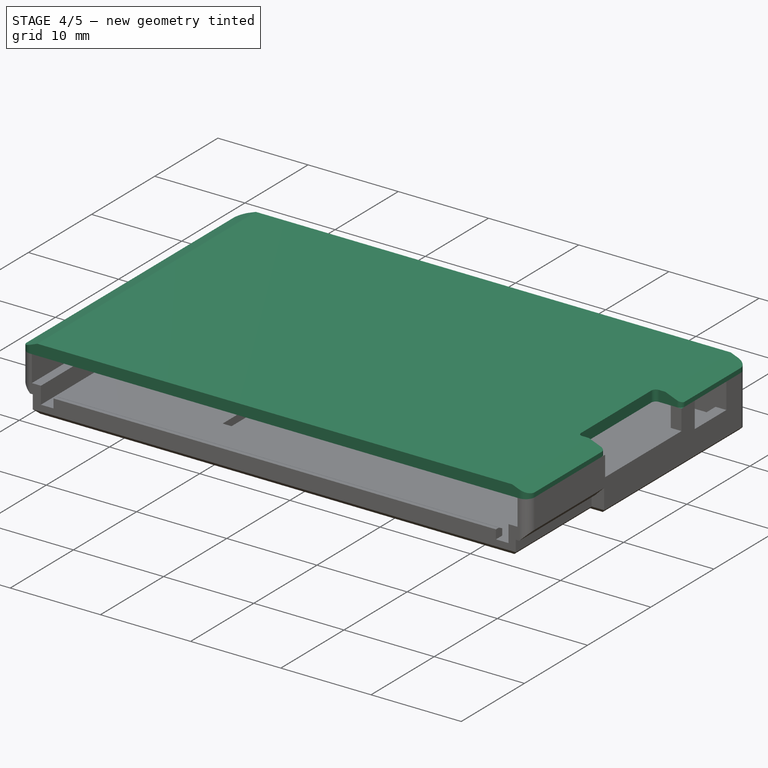
[diagram: stage 4 of 5 — iso view after this stage's code; geometry added in this stage tinted green]
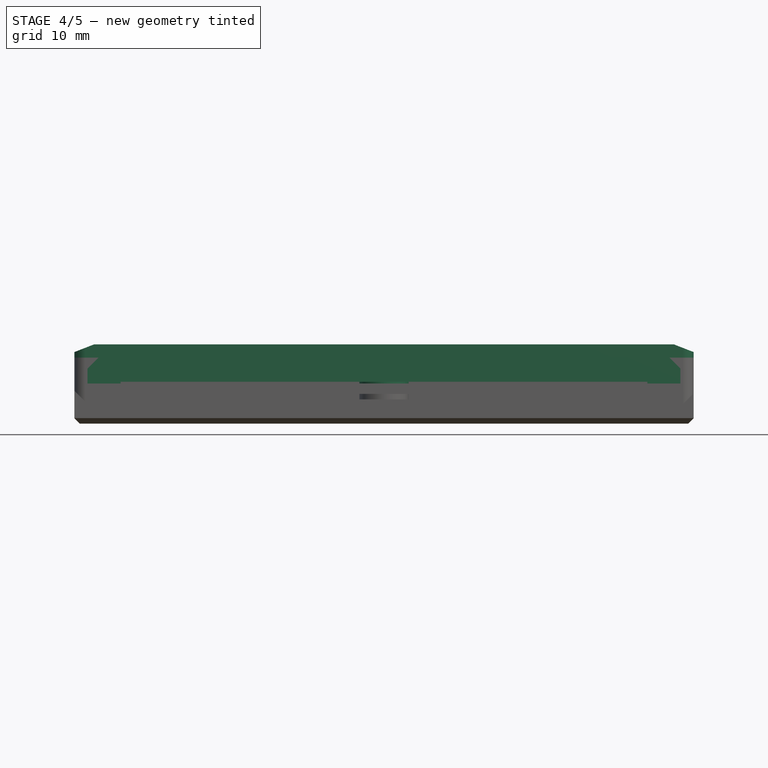
[diagram: stage 4 of 5 — front view after this stage's code; geometry added in this stage tinted green]
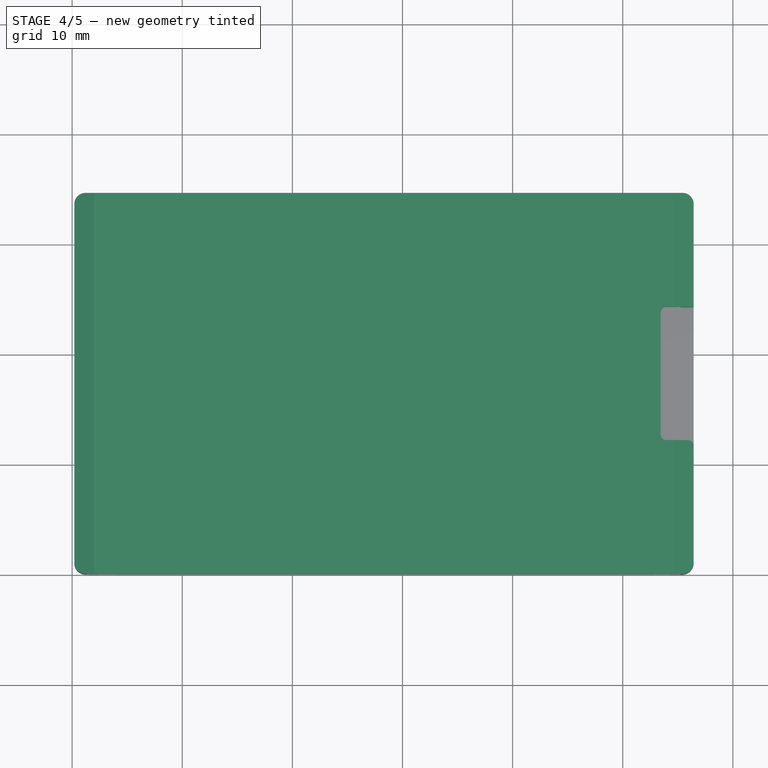
[diagram: stage 4 of 5 — top view after this stage's code; geometry added in this stage tinted green]
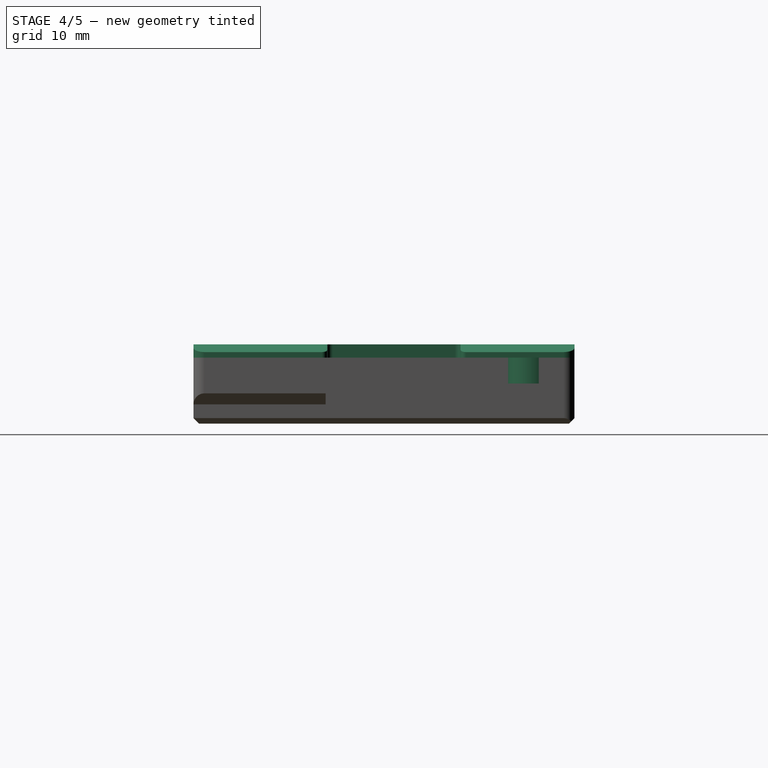
[diagram: stage 4 of 5 — right view after this stage's code; geometry added in this stage tinted green]
FEATURE [PartDesign::ShapeBinder] ShapeBinder
  Support = -> [Fillet]
  TraceSupport = false
FEATURE [Sketcher::SketchObject] Sketch011
  ExternalGeometry = -> [ShapeBinder]
  FullyConstrained = true
  MapMode = 5
  Placement = pos=(0,0,6) rot=(0,0,1;0rad)
  Support = -> [ShapeBinder]
  sketch-geometry (8):
    g0: ArcOfCircle CenterX=1.2 CenterY=33.6 CenterZ=0 NormalX=0 NormalY=0 NormalZ=1 AngleXU=0 Radius=1 StartAngle=1.5708 EndAngle=3.14159
    g1: ArcOfCircle CenterX=55.44 CenterY=33.6 CenterZ=0 NormalX=0 NormalY=0 NormalZ=1 AngleXU=0 Radius=1 StartAngle=0 EndAngle=1.5708
    g2: ArcOfCircle CenterX=55.44 CenterY=1 CenterZ=0 NormalX=0 NormalY=0 NormalZ=1 AngleXU=0 Radius=1 StartAngle=4.71239 EndAngle=6.28319
    g3: ArcOfCircle CenterX=1.2 CenterY=1 CenterZ=0 NormalX=0 NormalY=0 NormalZ=1 AngleXU=0 Radius=1 StartAngle=3.14159 EndAngle=4.71239
    g4: LineSegment StartX=0.2 StartY=33.6 StartZ=0 EndX=0.2 EndY=1 EndZ=0
    g5: LineSegment StartX=1.2 StartY=-2e-16 StartZ=0 EndX=55.44 EndY=-2e-16 EndZ=0
    g6: LineSegment StartX=56.44 StartY=1 StartZ=0 EndX=56.44 EndY=33.6 EndZ=0
    g7: LineSegment StartX=55.44 StartY=34.6 StartZ=0 EndX=1.2 EndY=34.6 EndZ=0
  constraints (20):
    c: Coincident(g0,g-6)
    c: Coincident(g0,g-6)
    c: Coincident(g0,g-6)
    c: Coincident(g1,g-7)
    c: Coincident(g1,g-7)
    c: Coincident(g1,g-7)
    c: Coincident(g2,g-3)
    c: Coincident(g2,g-3)
    c: Coincident(g2,g-3)
    c: Coincident(g3,g-5)
    c: Coincident(g3,g-5)
    c: Coincident(g3,g-5)
    c: Coincident(g4,g0)
    c: Coincident(g4,g3)
    c: Coincident(g5,g3)
    c: Coincident(g5,g2)
    c: Coincident(g6,g2)
    c: Coincident(g6,g1)
    c: Coincident(g7,g1)
    c: Coincident(g7,g0)
FEATURE [PartDesign::Pad] Pad003
  Direction = (0,0,1)
  Length = 1.2
  Length2 = 10
  Profile = -> Sketch011
  ReferenceAxis = -> Sketch011 [N_Axis]
  Type = 0
FEATURE [PartDesign::ShapeBinder] ShapeBinder001
  Support = -> [Pocket017]
  TraceSupport = false
FEATURE [Sketcher::SketchObject] Sketch015
  ExternalGeometry = -> [ShapeBinder001]
  FullyConstrained = true
  MapMode = 5
  Placement = pos=(0,0,6) rot=(1,0,0;3.14159rad)
  Support = -> [Pad003]
  sketch-geometry (14):
    g0: LineSegment StartX=1 StartY=-12.15 StartZ=0 EndX=2.4 EndY=-12.15 EndZ=0
    g1: LineSegment StartX=2.4 StartY=-12.15 StartZ=0 EndX=2.4 EndY=-11.35 EndZ=0
    g2: LineSegment StartX=2.4 StartY=-11.35 StartZ=0 EndX=1 EndY=-11.35 EndZ=0
    g3: LineSegment StartX=1 StartY=-11.35 StartZ=0 EndX=1 EndY=-12.15 EndZ=0
    g4: LineSegment StartX=55.64 StartY=-12.15 StartZ=0 EndX=54.24 EndY=-12.15 EndZ=0
    g5: LineSegment StartX=54.24 StartY=-12.15 StartZ=0 EndX=54.24 EndY=-11.35 EndZ=0
    g6: LineSegment StartX=54.24 StartY=-11.35 StartZ=0 EndX=55.64 EndY=-11.35 EndZ=0
    g7: LineSegment StartX=55.64 StartY=-11.35 StartZ=0 EndX=55.64 EndY=-12.15 EndZ=0
    g8: LineSegment StartX=2.4 StartY=-11.35 StartZ=0 EndX=4.4 EndY=-11.35 EndZ=0
    g9: LineSegment StartX=4.4 StartY=-11.35 StartZ=0 EndX=4.4 EndY=-12.15 EndZ=0
    g10: LineSegment StartX=4.4 StartY=-12.15 StartZ=0 EndX=2.4 EndY=-12.15 EndZ=0
    g11: LineSegment StartX=54.24 StartY=-11.35 StartZ=0 EndX=52.24 EndY=-11.35 EndZ=0
    g12: LineSegment StartX=52.24 StartY=-11.35 StartZ=0 EndX=52.24 EndY=-12.15 EndZ=0
    g13: LineSegment StartX=52.24 StartY=-12.15 StartZ=0 EndX=54.24 EndY=-12.15 EndZ=0
  constraints (38):
    c: Coincident(g0,g1)
    c: Coincident(g1,g2)
    c: Coincident(g2,g3)
    c: Coincident(g3,g0)
    c: Horizontal(g0)
    c: Horizontal(g2)
    c: Vertical(g1)
    c: Vertical(g3)
    c: Coincident(g0,g-3)
    c: PointOnObject(g1,g-4)
    c: Coincident(g4,g5)
    c: Coincident(g5,g6)
    c: Coincident(g6,g7)
    c: Coincident(g7,g4)
    c: Horizontal(g4)
    c: Horizontal(g6)
    c: Vertical(g5)
    c: Vertical(g7)
    c: Coincident(g4,g-5)
    c: PointOnObject(g5,g-6)
    c: Equal(g5,g1)
    c: Distance(g1) = 0.8
    c: Coincident(g8,g2)
    c: Horizontal(g8)
    c: Coincident(g9,g8)
    c: Vertical(g9)
    c: Coincident(g10,g9)
    c: Coincident(g10,g0)
    c: Horizontal(g10)
    c: Coincident(g11,g6)
    c: Horizontal(g11)
    c: Coincident(g12,g11)
    c: Coincident(g13,g12)
    c: Coincident(g13,g4)
    c: Horizontal(g13)
    c: Vertical(g12)
    c: Distance(g11) = 2
    c: Equal(g11,g8)
FEATURE [PartDesign::Pad] Pad006
  BaseFeature = -> Pad003
  Direction = (0,0,-1)
  Length = 2.35
  Length2 = 10
  Profile = -> Sketch015
  ReferenceAxis = -> Sketch015 [N_Axis]
  Refine = true
  Type = 0
FEATURE [PartDesign::ShapeBinder] ShapeBinder002
  Support = -> [Pocket017]
  TraceSupport = false
FEATURE [Sketcher::SketchObject] Sketch016
  ExternalGeometry = -> [ShapeBinder002,Pad006]
  FullyConstrained = true
  MapMode = 5
  Placement = pos=(0,12.15,0) rot=(0,0.707107,0.707107;3.14159rad)
  Support = -> [Pad006]
  sketch-geometry (6):
    g0: LineSegment StartX=-55.64 StartY=4.6 StartZ=0 EndX=-55.64 EndY=6 EndZ=0
    g1: LineSegment StartX=-55.64 StartY=6 StartZ=0 EndX=-54.24 EndY=6 EndZ=0
    g2: LineSegment StartX=-54.24 StartY=6 StartZ=0 EndX=-55.64 EndY=4.6 EndZ=0
    g3: LineSegment StartX=-1 StartY=6 StartZ=0 EndX=-2.4 EndY=6 EndZ=0
    g4: LineSegment StartX=-2.4 StartY=6 StartZ=0 EndX=-1 EndY=4.6 EndZ=0
    g5: LineSegment StartX=-1 StartY=4.6 StartZ=0 EndX=-1 EndY=6 EndZ=0
  constraints (15):
    c: Coincident(g0,g-3)
    c: Vertical(g0)
    c: Coincident(g1,g0)
    c: Coincident(g1,g-3)
    c: Horizontal(g1)
    c: Coincident(g2,g1)
    c: Coincident(g2,g0)
    c: Coincident(g3,g-5)
    c: PointOnObject(g3,g-5)
    c: Coincident(g4,g3)
    c: PointOnObject(g4,g-4)
    c: Coincident(g5,g4)
    c: Coincident(g5,g3)
    c: Equal(g3,g1)
    c: Equal(g0,g5)
FEATURE [PartDesign::Pocket] Pocket018
  BaseFeature = -> Pad006
  Direction = (0,-1,2e-16)
  Length = 0
  Length2 = 5
  Profile = -> Sketch016
  ReferenceAxis = -> Sketch016 [N_Axis]
  Refine = true
  Type = 3
  UpToFace = -> Pad006 [Face18]
FEATURE [Sketcher::SketchObject] Sketch017
  ExternalGeometry = -> [Pocket018]
  FullyConstrained = true
  MapMode = 5
  Placement = pos=(0,0,6) rot=(1,0,0;3.14159rad)
  Support = -> [Pocket018]
  sketch-geometry (5):
    g0: LineSegment StartX=4.4 StartY=-10.5 StartZ=0 EndX=52.24 EndY=-10.5 EndZ=0
    g1: LineSegment StartX=52.24 StartY=-10.5 StartZ=0 EndX=52.24 EndY=-12.15 EndZ=0
    g2: LineSegment StartX=52.24 StartY=-12.15 StartZ=0 EndX=4.4 EndY=-12.15 EndZ=0
    g3: LineSegment StartX=4.4 StartY=-12.15 StartZ=0 EndX=4.4 EndY=-10.5 EndZ=0
    g4: LineSegment StartX=28.32 StartY=-10.5 StartZ=0 EndX=28.32 EndY=0 EndZ=0
  constraints (13):
    c: Coincident(g0,g1)
    c: Coincident(g1,g2)
    c: Coincident(g2,g3)
    c: Coincident(g3,g0)
    c: Horizontal(g0)
    c: Horizontal(g2)
    c: Vertical(g1)
    c: Vertical(g3)
    c: Vertical(g4)
    c: Symmetric(g-3,g-3,g4)
    c: Symmetric(g0,g0,g4)
    c: Distance(g4) = 10.5
    c: Coincident(g2,g-4)
FEATURE [PartDesign::Pad] Pad007
  BaseFeature = -> Pocket018
  Direction = (0,0,-1)
  Length = 2.2
  Length2 = 10
  Profile = -> Sketch017
  ReferenceAxis = -> Sketch017 [N_Axis]
  Refine = true
  Type = 0
FEATURE [Sketcher::SketchObject] Sketch018
  ExternalGeometry = -> [ShapeBinder001]
  FullyConstrained = true
  MapMode = 5
  Placement = pos=(0,0,6) rot=(1,0,0;3.14159rad)
  Support = -> [Pad007]
  sketch-geometry (2):
    g0: Circle CenterX=28.32 CenterY=-30.8 CenterZ=0 NormalX=0 NormalY=0 NormalZ=1 AngleXU=0 Radius=2.23266
    g1: Circle CenterX=28.32 CenterY=-30.8 CenterZ=0 NormalX=0 NormalY=0 NormalZ=1 AngleXU=0 Radius=1
  constraints (4):
    c: Coincident(g0,g-3)
    c: Equal(g0,g-3)
    c: Coincident(g1,g0)
    c: Diameter(g1) = 2
FEATURE [PartDesign::Pad] Pad008
  BaseFeature = -> Pad007
  Direction = (0,0,-1)
  Length = 2.35
  Length2 = 10
  Profile = -> Sketch018
  ReferenceAxis = -> Sketch018 [N_Axis]
  Type = 0
FEATURE [PartDesign::ShapeBinder] ShapeBinder003
  Support = -> [Pocket017]
  TraceSupport = false
FEATURE [Sketcher::SketchObject] Sketch020
  ExternalGeometry = -> [ShapeBinder003]
  FullyConstrained = true
  MapMode = 5
  Placement = pos=(0,0,6) rot=(1,0,0;3.14159rad)
  Support = -> [Pad008]
  sketch-geometry (4):
    g0: LineSegment StartX=56.44 StartY=-12.15 StartZ=0 EndX=53.44 EndY=-12.15 EndZ=0
    g1: LineSegment StartX=53.44 StartY=-12.15 StartZ=0 EndX=53.44 EndY=-24.25 EndZ=0
    g2: LineSegment StartX=53.44 StartY=-24.25 StartZ=0 EndX=56.44 EndY=-24.25 EndZ=0
    g3: LineSegment StartX=56.44 StartY=-12.15 StartZ=0 EndX=56.44 EndY=-24.25 EndZ=0
  constraints (10):
    c: Horizontal(g0)
    c: Coincident(g1,g0)
    c: Vertical(g1)
    c: Coincident(g2,g1)
    c: Coincident(g2,g-3)
    c: Horizontal(g2)
    c: Distance(g0) = 3
    c: Coincident(g-3,g0)
    c: Coincident(g3,g0)
    c: Coincident(g3,g2)
FEATURE [PartDesign::Pocket] Pocket019
  BaseFeature = -> Pad008
  Direction = (0,0,1)
  Length = 5
  Length2 = 5
  Profile = -> Sketch020
  ReferenceAxis = -> Sketch020 [N_Axis]
  Refine = true
  Type = 0
FEATURE [PartDesign::Fillet] Fillet001
  Base = -> Pocket019 [Edge42,Edge41,Edge40,Edge62]
  BaseFeature = -> Pocket019
  Radius = 0.5
  SupportTransform = false
  UseAllEdges = false
FEATURE [Sketcher::SketchObject] Sketch021
  ExternalGeometry = -> [Fillet001]
  FullyConstrained = true
  MapMode = 5
  Placement = pos=(0,-2e-16,0) rot=(1,0,0;1.5708rad)
  Support = -> [Fillet001]
  sketch-geometry (6):
    g0: LineSegment StartX=0.2 StartY=7.2 StartZ=0 EndX=2 EndY=7.2 EndZ=0
    g1: LineSegment StartX=0.2 StartY=7.2 StartZ=0 EndX=0.2 EndY=6.5 EndZ=0
    g2: LineSegment StartX=0.2 StartY=6.5 StartZ=0 EndX=2 EndY=7.2 EndZ=0
    g3: LineSegment StartX=56.44 StartY=7.2 StartZ=0 EndX=56.44 EndY=6.5 EndZ=0
    g4: LineSegment StartX=56.44 StartY=7.2 StartZ=0 EndX=54.64 EndY=7.2 EndZ=0
    g5: LineSegment StartX=54.64 StartY=7.2 StartZ=0 EndX=56.44 EndY=6.5 EndZ=0
  constraints (16):
    c: Coincident(g0,g-4)
    c: Horizontal(g0)
    c: Coincident(g1,g0)
    c: PointOnObject(g1,g-4)
    c: Coincident(g2,g1)
    c: Coincident(g2,g0)
    c: Coincident(g3,g-3)
    c: PointOnObject(g3,g-3)
    c: Coincident(g4,g3)
    c: Horizontal(g4)
    c: Coincident(g5,g4)
    c: Coincident(g5,g3)
    c: Distance(g3) = 0.7
    c: Distance(g4) = 1.8
    c: Equal(g4,g0)
    c: Equal(g1,g3)
FEATURE [PartDesign::Pocket] Pocket020
  BaseFeature = -> Fillet001
  Direction = (0,1,-2e-16)
  Length = 200
  Length2 = 5
  Profile = -> Sketch021
  ReferenceAxis = -> Sketch021 [N_Axis]
  Type = 0
FEATURE [PartDesign::Body] Body001  label="Shell Top"
  Group = -> [ShapeBinder,Sketch011,Pad003,ShapeBinder001,Sketch015,Pad006,ShapeBinder002,Sketch016,Pocket018,Sketch017,Pad007,Sketch018,Pad008,ShapeBinder003,Sketch020,Pocket019,Fillet001,Sketch021,Pocket020,Chamfer004,Sketch022,Pocket021,Chamfer005,Sketch023,Pad009,Sketch024,Pocket022,Chamfer006,Chamfer007,Sketch025,Pocket023,Sketch026,Pocket024]
  Origin = -> Origin001
  Tip = -> Pocket024
FEATURE [PartDesign::Pad] Pad010
  BaseFeature = -> Pocket017
  Direction = (0,0,1)
  Length = 10
  Length2 = 10
  Profile = -> Pocket017 [Face38]
  Refine = true
  Type = 3
  UpToFace = -> Pocket017 [Face10]
FEATURE [PartDesign::Body] Body  label="Shell Bottom"
  Group = -> [Sketch,Pad,Sketch001,Pocket,Sketch002,Pad001,Chamfer,Sketch003,Pocket001,Sketch004,Pocket002,Sketch005,Pocket003,Pocket004,Sketch006,Pocket005,Pocket006,Pocket007,Pocket008,Pocket009,Chamfer001,Sketch007,Pad002,Sketch008,Pocket010,Sketch009,Pocket011,Chamfer002,Pocket012,Pocket013,Sketch010,Pocket014,Chamfer003,Pocket015,Fillet,Pad004,Sketch012,Pad005,Sketch013,Pocket016,Sketch014,Pocket017,+1 more]
  Origin = -> Origin
  Tip = -> Pad010
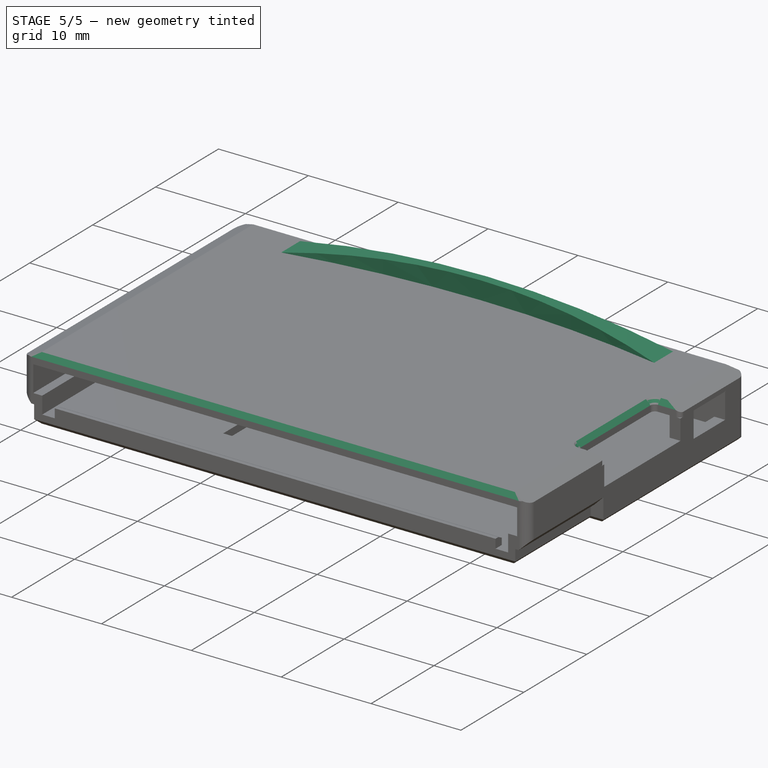
[diagram: stage 5 of 5 — iso view after this stage's code; geometry added in this stage tinted green]
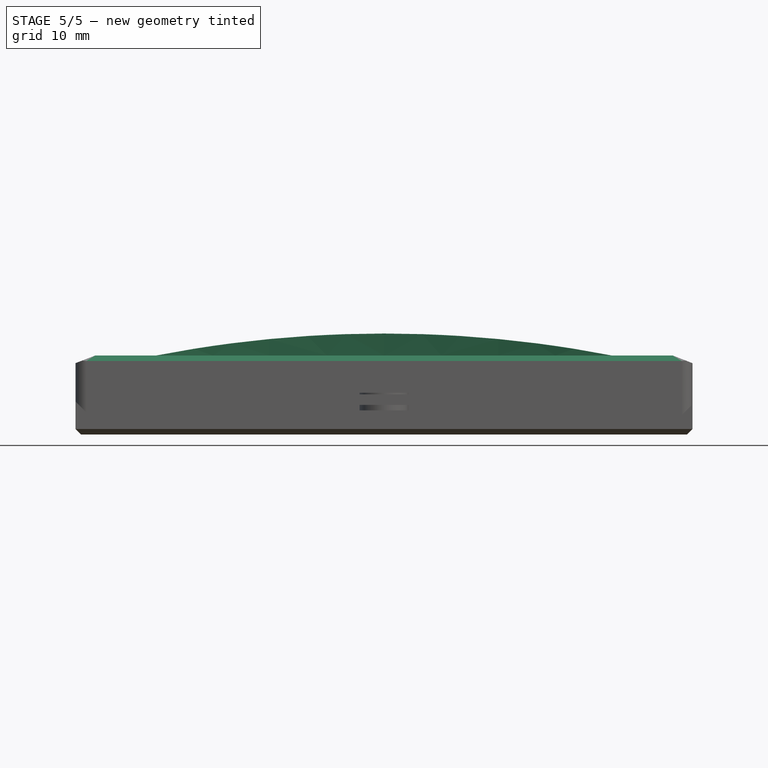
[diagram: stage 5 of 5 — front view after this stage's code; geometry added in this stage tinted green]
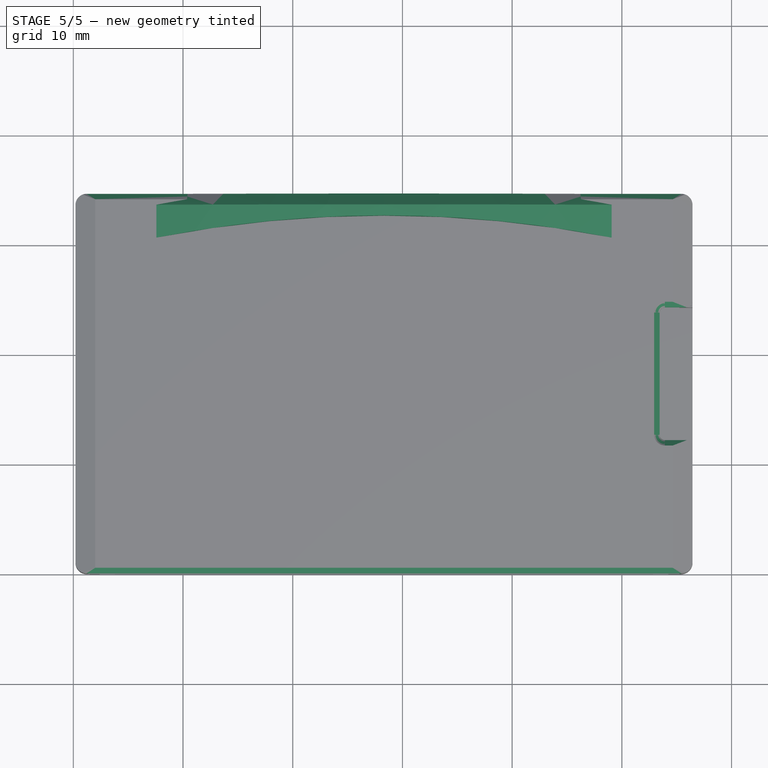
[diagram: stage 5 of 5 — top view after this stage's code; geometry added in this stage tinted green]
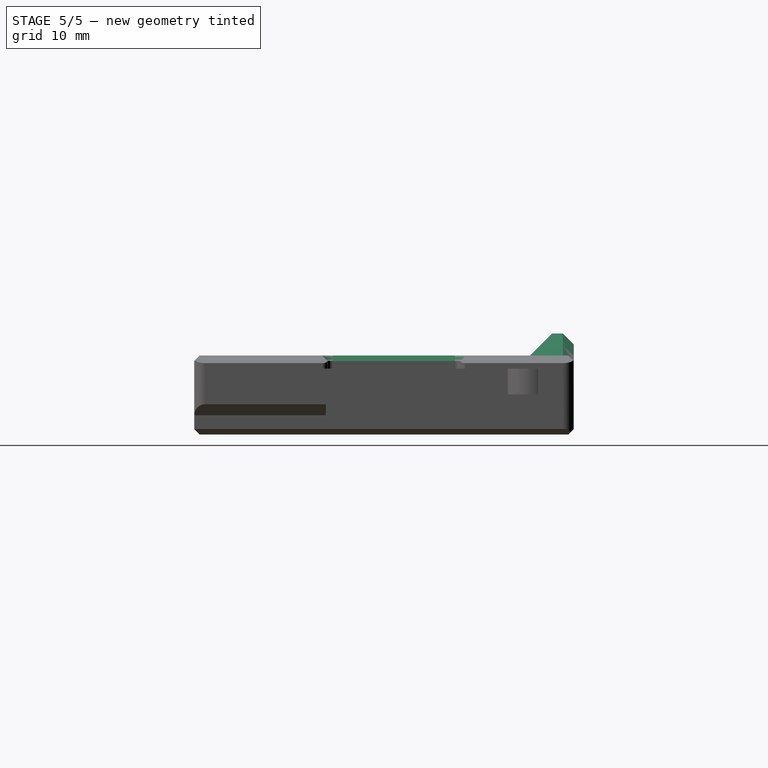
[diagram: stage 5 of 5 — right view after this stage's code; geometry added in this stage tinted green]
FEATURE [PartDesign::Chamfer] Chamfer004
  Angle = 45
  Base = -> Pocket020 [Edge67]
  BaseFeature = -> Pocket020
  ChamferType = 0
  FlipDirection = false
  Size = 0.5
  Size2 = 1
  SupportTransform = false
  UseAllEdges = false
FEATURE [Sketcher::SketchObject] Sketch022
  ExternalGeometry = -> [Chamfer004]
  FullyConstrained = true
  MapMode = 5
  Placement = pos=(0.2,0,0) rot=(-0.57735,0.57735,0.57735;4.18879rad)
  Support = -> [Chamfer004]
  sketch-geometry (3):
    g0: LineSegment StartX=-0.5 StartY=7.2 StartZ=0 EndX=0 EndY=6.7 EndZ=0
    g1: LineSegment StartX=0 StartY=6.7 StartZ=0 EndX=0 EndY=7.2 EndZ=0
    g2: LineSegment StartX=0 StartY=7.2 StartZ=0 EndX=-0.5 EndY=7.2 EndZ=0
  constraints (7):
    c: Coincident(g0,g-3)
    c: Coincident(g0,g-4)
    c: Coincident(g1,g0)
    c: PointOnObject(g1,g-2)
    c: Coincident(g2,g1)
    c: Coincident(g2,g0)
    c: Horizontal(g2)
FEATURE [PartDesign::Pocket] Pocket021
  BaseFeature = -> Chamfer004
  Direction = (1,0,0)
  Length = 200
  Length2 = 5
  Profile = -> Sketch022
  ReferenceAxis = -> Sketch022 [N_Axis]
  Refine = true
  Type = 0
FEATURE [PartDesign::Chamfer] Chamfer005
  Angle = 45
  Base = -> Pocket021 [Edge7]
  BaseFeature = -> Pocket021
  ChamferType = 0
  FlipDirection = false
  Size = 0.5
  Size2 = 1
  SupportTransform = false
  UseAllEdges = false
FEATURE [Sketcher::SketchObject] Sketch023
  ExternalGeometry = -> [Chamfer005]
  FullyConstrained = true
  MapMode = 5
  Placement = pos=(0,0,7.2) rot=(0,0,1;0rad)
  Support = -> [Chamfer005]
  sketch-geometry (6):
    g0: ArcOfCircle CenterX=28.32 CenterY=-76.0406 CenterZ=0 NormalX=0 NormalY=0 NormalZ=1 AngleXU=0 Radius=108.641 StartAngle=1.37862 EndAngle=1.76297
    g1: LineSegment StartX=28.32 StartY=-76.0406 StartZ=0 EndX=28.32 EndY=34.6 EndZ=0
    g2: LineSegment StartX=7.57 StartY=34.6 StartZ=0 EndX=49.07 EndY=34.6 EndZ=0
    g3: LineSegment StartX=7.57 StartY=30.6 StartZ=0 EndX=7.57 EndY=34.6 EndZ=0
    g4: LineSegment StartX=49.07 StartY=30.6 StartZ=0 EndX=49.07 EndY=34.6 EndZ=0
    g5: LineSegment StartX=28.32 StartY=32.6 StartZ=0 EndX=28.32 EndY=34.6 EndZ=0
  constraints (17):
    c: Coincident(g1,g0)
    c: Vertical(g1)
    c: Symmetric(g-3,g-3,g1)
    c: Horizontal(g2)
    c: Symmetric(g2,g2,g1)
    c: Coincident(g3,g0)
    c: Coincident(g3,g2)
    c: Coincident(g4,g0)
    c: Coincident(g4,g2)
    c: Vertical(g4)
    c: Vertical(g3)
    c: Distance(g3) = 4
    c: Distance(g2) = 41.5
    c: PointOnObject(g5,g0)
    c: Distance(g5) = 2
    c: Coincident(g5,g1)
    c: Perpendicular(g0,g5)
FEATURE [PartDesign::Pad] Pad009
  BaseFeature = -> Chamfer005
  Direction = (0,0,1)
  Length = 2
  Length2 = 10
  Profile = -> Sketch023
  ReferenceAxis = -> Sketch023 [N_Axis]
  Refine = true
  Type = 0
FEATURE [Sketcher::SketchObject] Sketch024
  ExternalGeometry = -> [Pad009]
  FullyConstrained = true
  MapMode = 5
  Placement = pos=(0,34.6,0) rot=(0,0.707107,0.707107;3.14159rad)
  Support = -> [Pad009]
  sketch-geometry (4):
    g0: ArcOfCircle CenterX=-28.32 CenterY=-99.4406 CenterZ=0 NormalX=0 NormalY=0 NormalZ=1 AngleXU=0 Radius=108.641 StartAngle=1.37862 EndAngle=1.76297
    g1: LineSegment StartX=-49.07 StartY=7.2 StartZ=0 EndX=-49.07 EndY=9.2 EndZ=0
    g2: LineSegment StartX=-49.07 StartY=9.2 StartZ=0 EndX=-7.57 EndY=9.2 EndZ=0
    g3: LineSegment StartX=-7.57 StartY=9.2 StartZ=0 EndX=-7.57 EndY=7.2 EndZ=0
  constraints (9):
    c: Coincident(g0,g-3)
    c: Coincident(g0,g-4)
    c: Tangent(g0,g-5)
    c: Coincident(g1,g0)
    c: Coincident(g1,g-5)
    c: Coincident(g2,g1)
    c: Coincident(g2,g-5)
    c: Coincident(g3,g2)
    c: Coincident(g3,g0)
FEATURE [PartDesign::Pocket] Pocket022
  BaseFeature = -> Pad009
  Direction = (0,-1,-2e-16)
  Length = 4
  Length2 = 5
  Profile = -> Sketch024
  ReferenceAxis = -> Sketch024 [N_Axis]
  Refine = true
  Type = 0
FEATURE [PartDesign::Chamfer] Chamfer006
  Angle = 45
  Base = -> Pocket022 [Edge31]
  BaseFeature = -> Pocket022
  ChamferType = 0
  FlipDirection = false
  Size = 1
  Size2 = 1
  SupportTransform = false
  UseAllEdges = false
FEATURE [PartDesign::Chamfer] Chamfer007
  Angle = 45
  Base = -> Chamfer006 [Edge11,Edge4]
  BaseFeature = -> Chamfer006
  ChamferType = 0
  FlipDirection = false
  Size = 0.5
  Size2 = 1
  SupportTransform = false
  UseAllEdges = false
FEATURE [Sketcher::SketchObject] Sketch025
  ExternalGeometry = -> [Chamfer007]
  FullyConstrained = true
  MapMode = 5
  Placement = pos=(56.44,0,0) rot=(0.57735,0.57735,0.57735;2.0944rad)
  Support = -> [Chamfer007]
  sketch-geometry (3):
    g0: LineSegment StartX=34.1 StartY=7.2 StartZ=0 EndX=34.6 EndY=6.7 EndZ=0
    g1: LineSegment StartX=34.6 StartY=6.7 StartZ=0 EndX=34.6 EndY=7.2 EndZ=0
    g2: LineSegment StartX=34.6 StartY=7.2 StartZ=0 EndX=34.1 EndY=7.2 EndZ=0
  constraints (7):
    c: Coincident(g0,g-3)
    c: Coincident(g0,g-4)
    c: Coincident(g1,g0)
    c: Coincident(g2,g1)
    c: Coincident(g2,g0)
    c: Horizontal(g2)
    c: Vertical(g1)
FEATURE [PartDesign::Pocket] Pocket023
  BaseFeature = -> Chamfer007
  Direction = (-1,0,0)
  Length = 5
  Length2 = 5
  Profile = -> Sketch025
  ReferenceAxis = -> Sketch025 [N_Axis]
  Refine = true
  Type = 0
FEATURE [Sketcher::SketchObject] Sketch026
  ExternalGeometry = -> [Pocket023]
  FullyConstrained = true
  MapMode = 5
  Placement = pos=(0.2,0,0) rot=(-0.57735,0.57735,0.57735;4.18879rad)
  Support = -> [Pocket023]
  sketch-geometry (3):
    g0: LineSegment StartX=-34.6 StartY=6.7 StartZ=0 EndX=-34.1 EndY=7.2 EndZ=0
    g1: LineSegment StartX=-34.1 StartY=7.2 StartZ=0 EndX=-34.6 EndY=7.2 EndZ=0
    g2: LineSegment StartX=-34.6 StartY=6.7 StartZ=0 EndX=-34.6 EndY=7.2 EndZ=0
  constraints (7):
    c: Coincident(g0,g-4)
    c: Coincident(g0,g-3)
    c: Coincident(g1,g0)
    c: Horizontal(g1)
    c: Coincident(g2,g0)
    c: Coincident(g1,g2)
    c: Vertical(g2)
FEATURE [PartDesign::Pocket] Pocket024
  BaseFeature = -> Pocket023
  Direction = (1,0,0)
  Length = 5
  Length2 = 5
  Profile = -> Sketch026
  ReferenceAxis = -> Sketch026 [N_Axis]
  Refine = true
  Type = 0
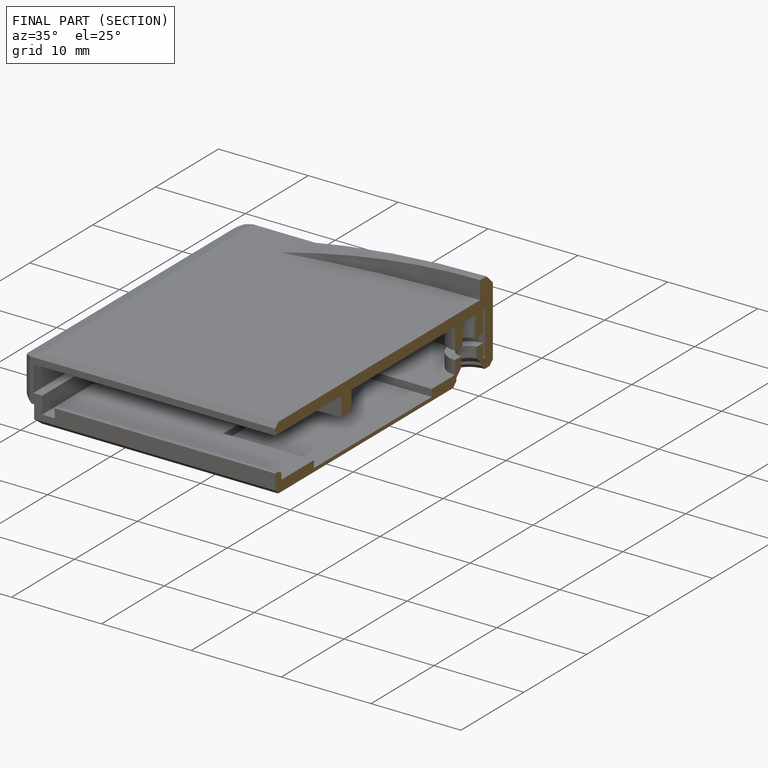
[diagram: finished part — half-section view (interior)]
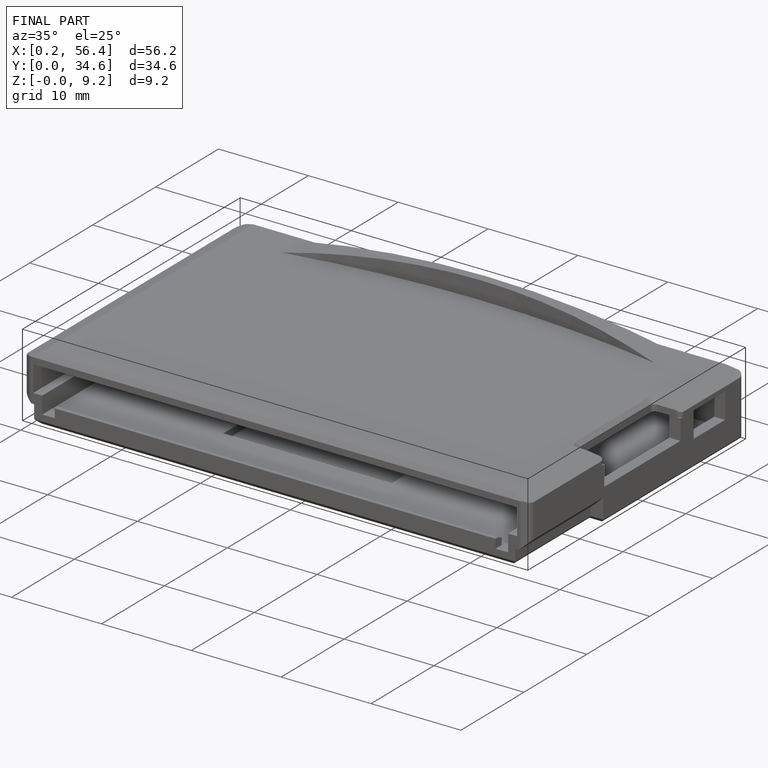
[diagram: finished part — iso view with bounding-box wireframe]
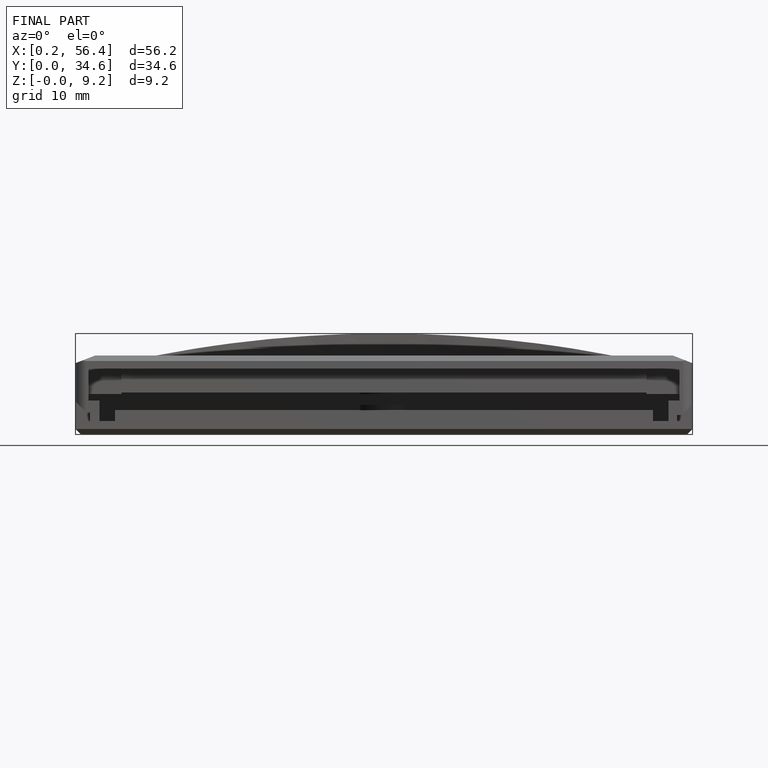
[diagram: finished part — front view with bounding-box wireframe]
